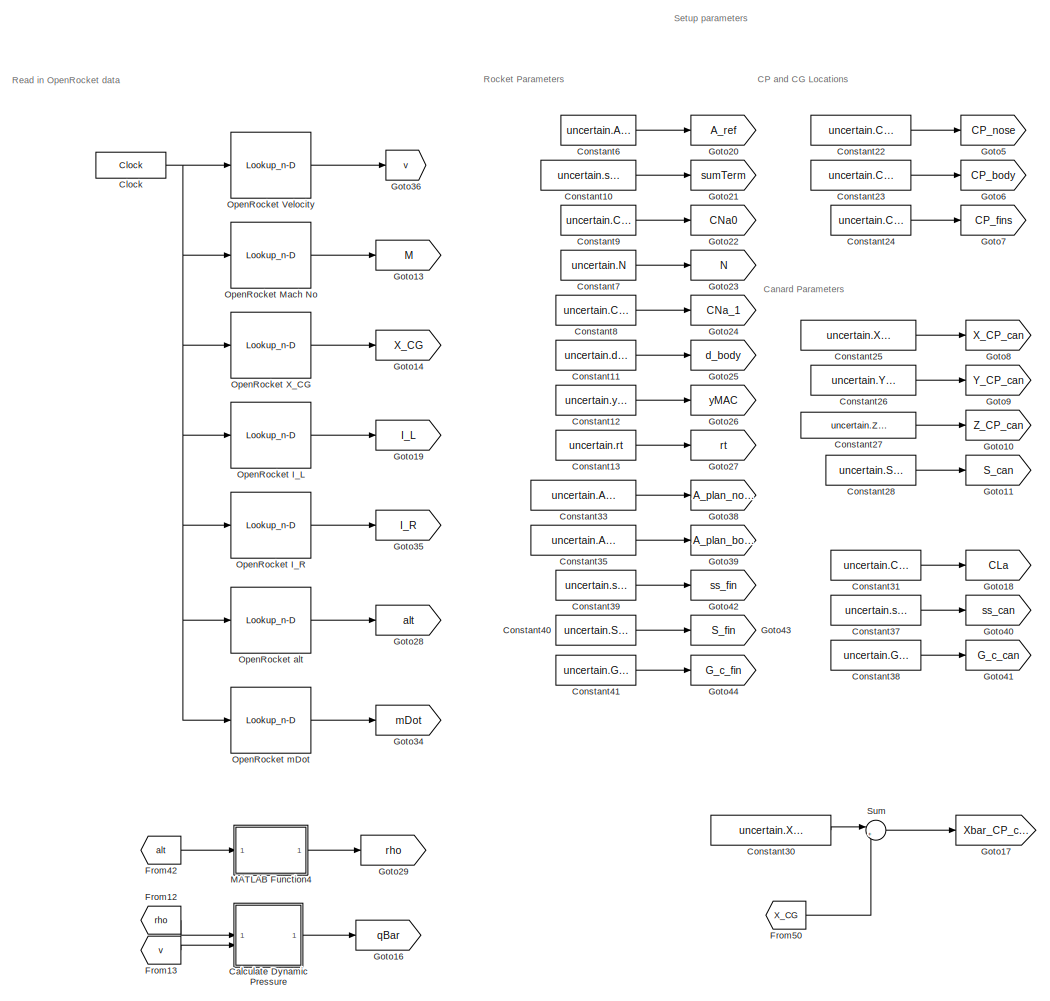
[diagram: root canvas - part 1/5, left side, full height]
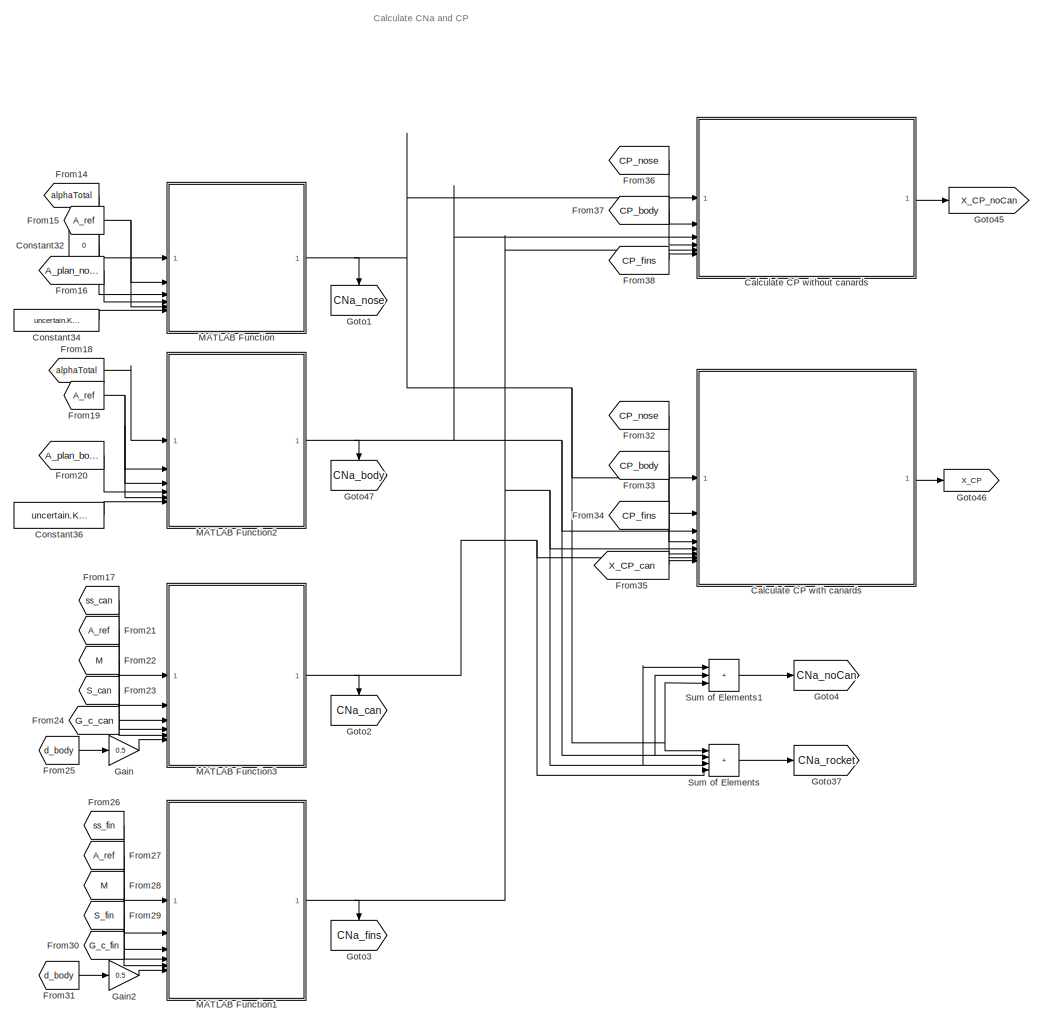
[diagram: root canvas - part 2/5, center side, full height]
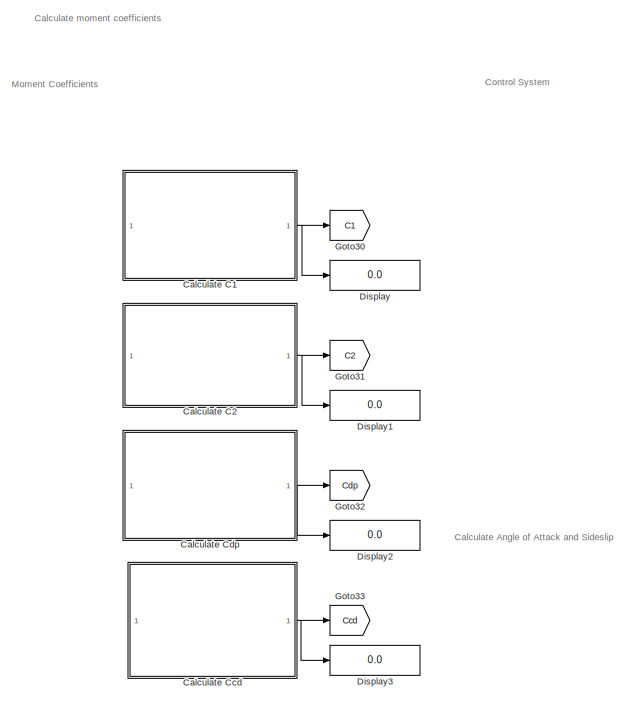
[diagram: root canvas - part 3/5, central region]
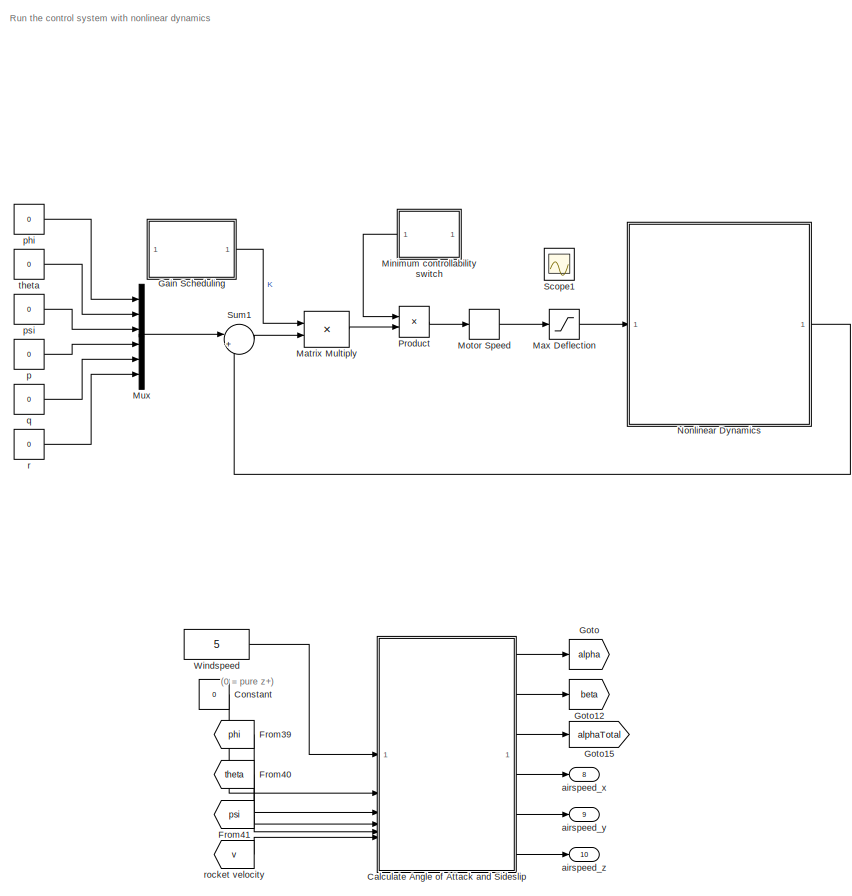
[diagram: root canvas - part 4/5, right side, full height]
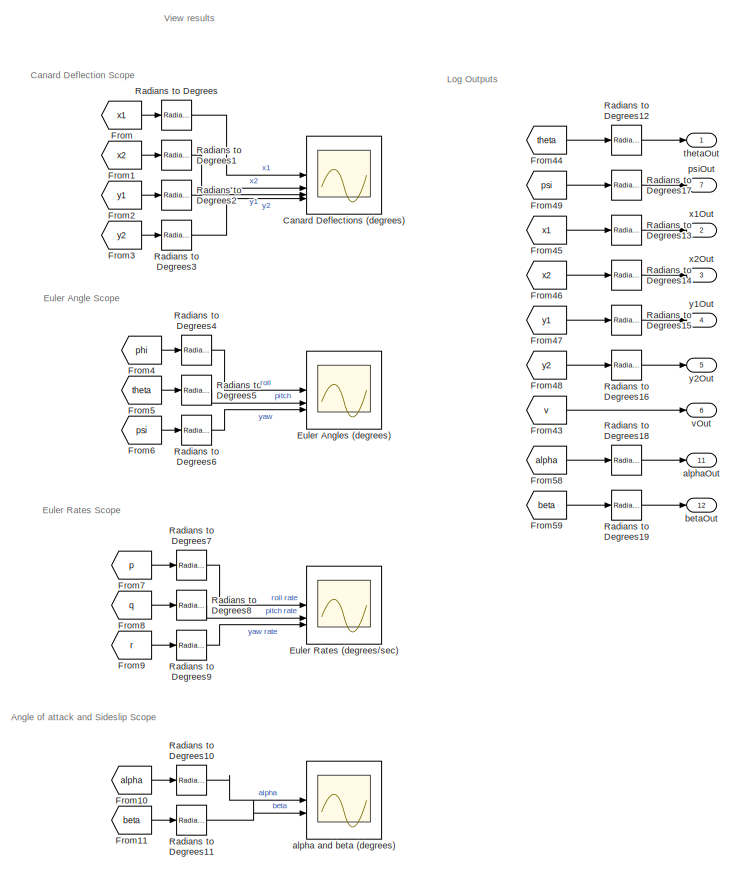
[diagram: root canvas - part 5/5, right side, full height]
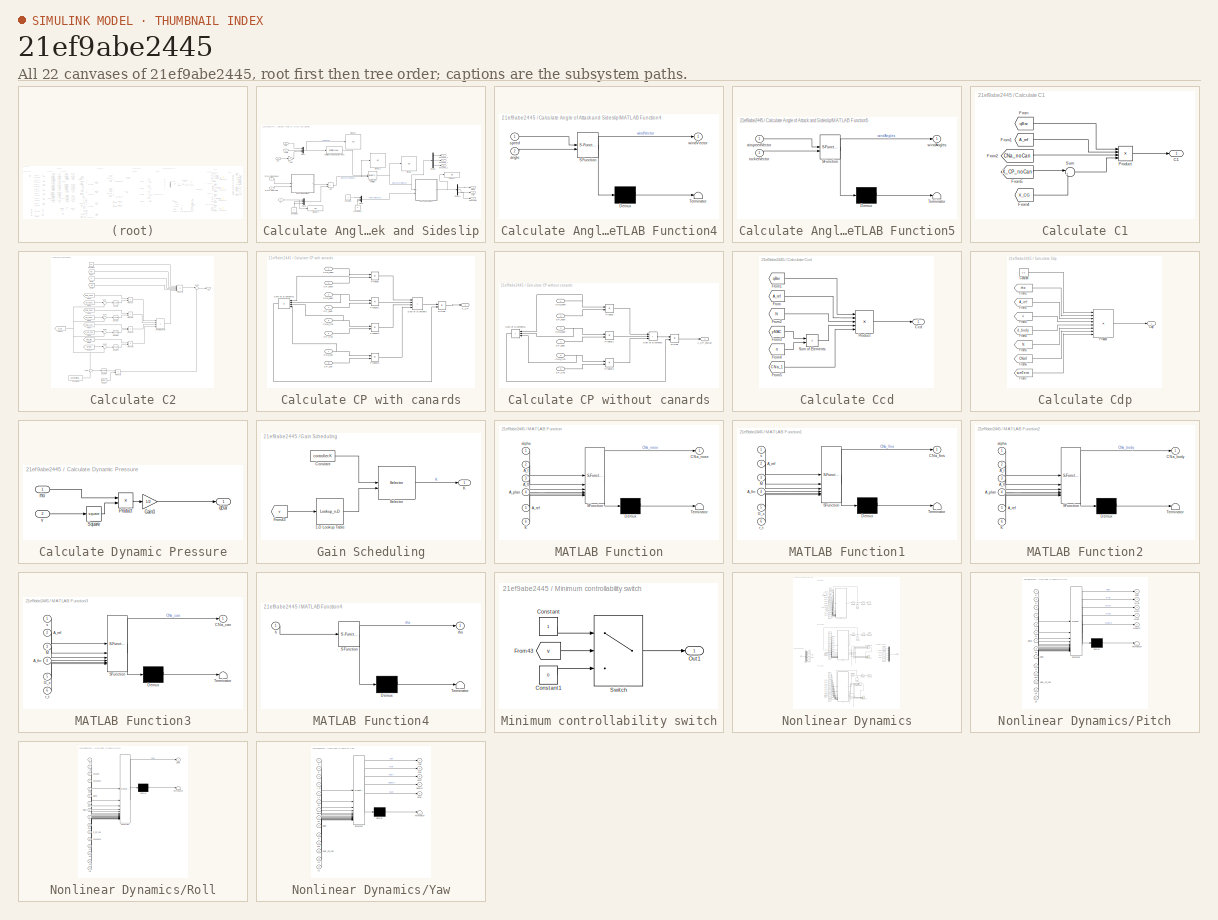
[diagram: thumbnail index - all 22 canvases of the model, root first then tree order]
MODEL slx_21ef9abe2445
KIND model
CONFIG AbsTol = auto
CONFIG EnableMultiTasking = off
CONFIG FixedStep = 0.01
CONFIG MaxStep = auto
CONFIG MinStep = auto
CONFIG RelTol = 1e-3
CONFIG SampleTimeConstraint = Unconstrained
CONFIG SolverName = FixedStepAuto
CONFIG StartTime = 0.0
CONFIG StopTime = 14.9
BLOCK [SubSystem] Calculate Angle of Attack and Sideslip
BLOCK [Sum] Calculate Angle of Attack and Sideslip/Add
  IconShape = rectangular
BLOCK [Constant] Calculate Angle of Attack and Sideslip/Constant
BLOCK [Constant] Calculate Angle of Attack and Sideslip/Constant1
  NameLocation = right
  Value = 0
BLOCK [Constant] Calculate Angle of Attack and Sideslip/Constant16
  NameLocation = right
  Value = 0
BLOCK [Inport] Calculate Angle of Attack and Sideslip/Cross-wind Angle
  Port = 2
BLOCK [Inport] Calculate Angle of Attack and Sideslip/Cross-wind Speed
BLOCK [Demux] Calculate Angle of Attack and Sideslip/Demux
  Outputs = 3
BLOCK [Demux] Calculate Angle of Attack and Sideslip/Demux1
  Outputs = 3
BLOCK [Display] Calculate Angle of Attack and Sideslip/Display
  Decimation = 1
BLOCK [Display] Calculate Angle of Attack and Sideslip/Display1
  Decimation = 1
BLOCK [Display] Calculate Angle of Attack and Sideslip/Display2
  Decimation = 1
BLOCK [Display] Calculate Angle of Attack and Sideslip/Display3
  Decimation = 1
BLOCK [Display] Calculate Angle of Attack and Sideslip/Display4
  Decimation = 1
BLOCK [Gain] Calculate Angle of Attack and Sideslip/Gain
  Gain = -1
BLOCK [SubSystem] Calculate Angle of Attack and Sideslip/MATLAB Function4
  ErrorFcn = Stateflow.Translate.translate
  PermitHierarchicalResolution = ExplicitOnly
  SFBlockType = MATLAB Function
  TreatAsAtomicUnit = on
BLOCK [Demux] Calculate Angle of Attack and Sideslip/MATLAB Function4/ Demux 
  Outputs = 1
BLOCK [S-Function] Calculate Angle of Attack and Sideslip/MATLAB Function4/ SFunction 
  EnableBusSupport = on
  FunctionName = sf_sfun
  PortCounts = [2 2]
  SFcnIsStateOwnerBlock = off
  SFunctionDeploymentMode = off
  Tag = Stateflow S-Function 8
BLOCK [Terminator] Calculate Angle of Attack and Sideslip/MATLAB Function4/ Terminator 
BLOCK [Inport] Calculate Angle of Attack and Sideslip/MATLAB Function4/angle
  Port = 2
BLOCK [Inport] Calculate Angle of Attack and Sideslip/MATLAB Function4/speed
BLOCK [Outport] Calculate Angle of Attack and Sideslip/MATLAB Function4/windVector
BLOCK [SubSystem] Calculate Angle of Attack and Sideslip/MATLAB Function5
  ErrorFcn = Stateflow.Translate.translate
  PermitHierarchicalResolution = ExplicitOnly
  SFBlockType = MATLAB Function
  TreatAsAtomicUnit = on
BLOCK [Demux] Calculate Angle of Attack and Sideslip/MATLAB Function5/ Demux 
  Outputs = 1
BLOCK [S-Function] Calculate Angle of Attack and Sideslip/MATLAB Function5/ SFunction 
  EnableBusSupport = on
  FunctionName = sf_sfun
  PortCounts = [2 2]
  SFcnIsStateOwnerBlock = off
  SFunctionDeploymentMode = off
  Tag = Stateflow S-Function 9
BLOCK [Terminator] Calculate Angle of Attack and Sideslip/MATLAB Function5/ Terminator 
BLOCK [Inport] Calculate Angle of Attack and Sideslip/MATLAB Function5/airspeedVector
BLOCK [Inport] Calculate Angle of Attack and Sideslip/MATLAB Function5/rocketVector
  Port = 2
BLOCK [Outport] Calculate Angle of Attack and Sideslip/MATLAB Function5/windAngles
BLOCK [Mux] Calculate Angle of Attack and Sideslip/Mux1
  DisplayOption = bar
  Inputs = 3
BLOCK [Mux] Calculate Angle of Attack and Sideslip/Mux2
  DisplayOption = bar
  Inputs = 3
BLOCK [Mux] Calculate Angle of Attack and Sideslip/Mux3
  DisplayOption = bar
  Inputs = 3
BLOCK [Inport] Calculate Angle of Attack and Sideslip/Phi
  Port = 3
BLOCK [Inport] Calculate Angle of Attack and Sideslip/Psi
  Port = 5
BLOCK [Reference] Calculate Angle of Attack and Sideslip/Quaternion Rotation  REF=aerolibutil/Quaternion
Rotation
  SourceBlock = aerolibutil/Quaternion\nRotation
  SourceType = Quaternion Rotation
BLOCK [Reference] Calculate Angle of Attack and Sideslip/Rotation Angles to Quaternions  REF=sharedtransform/Rotation Angles to Quaternions
  AttributesFormatString = Rotation Order: %<rotationOrder>
  SourceBlock = sharedtransform/Rotation Angles to Quaternions
  SourceType = Ang2Quat
BLOCK [Inport] Calculate Angle of Attack and Sideslip/Theta
  Port = 4
BLOCK [Outport] Calculate Angle of Attack and Sideslip/airspeed_x
  Port = 4
BLOCK [Outport] Calculate Angle of Attack and Sideslip/airspeed_y
  Port = 5
BLOCK [Outport] Calculate Angle of Attack and Sideslip/airspeed_z
  Port = 6
BLOCK [Outport] Calculate Angle of Attack and Sideslip/alpha
BLOCK [Outport] Calculate Angle of Attack and Sideslip/alphaTotal
  Port = 3
BLOCK [Outport] Calculate Angle of Attack and Sideslip/beta
  Port = 2
BLOCK [Inport] Calculate Angle of Attack and Sideslip/v
  Port = 6
BLOCK [SubSystem] Calculate C1
BLOCK [Outport] Calculate C1/C1
BLOCK [From] Calculate C1/From
  GotoTag = qBar
  TagVisibility = global
BLOCK [From] Calculate C1/From1
  GotoTag = A_ref
  TagVisibility = global
BLOCK [From] Calculate C1/From2
  GotoTag = CNa_noCan
  TagVisibility = global
BLOCK [From] Calculate C1/From4
  GotoTag = X_CG
  TagVisibility = global
BLOCK [From] Calculate C1/From5
  GotoTag = X_CP_noCan
  TagVisibility = global
BLOCK [Product] Calculate C1/Product
  Inputs = 4
BLOCK [Sum] Calculate C1/Sum
  Inputs = |+-
BLOCK [SubSystem] Calculate C2
BLOCK [Outport] Calculate C2/C2
BLOCK [Constant] Calculate C2/Constant
  Value = 0.5
BLOCK [Constant] Calculate C2/Constant1
  Value = uncertain.X_T
BLOCK [From] Calculate C2/From
  GotoTag = rho
  TagVisibility = global
BLOCK [From] Calculate C2/From1
  GotoTag = v
  TagVisibility = global
BLOCK [From] Calculate C2/From10
  GotoTag = CP_fins
  TagVisibility = global
BLOCK [From] Calculate C2/From11
  GotoTag = X_CG
  TagVisibility = global
BLOCK [From] Calculate C2/From12
  GotoTag = mDot
  TagVisibility = global
BLOCK [From] Calculate C2/From2
  GotoTag = A_ref
  TagVisibility = global
BLOCK [From] Calculate C2/From3
  GotoTag = CNa_nose
  TagVisibility = global
BLOCK [From] Calculate C2/From4
  GotoTag = CP_nose
  TagVisibility = global
BLOCK [From] Calculate C2/From5
  GotoTag = CNa_body
  TagVisibility = global
BLOCK [From] Calculate C2/From6
  GotoTag = CP_body
  TagVisibility = global
BLOCK [From] Calculate C2/From7
  GotoTag = CNa_can
  TagVisibility = global
BLOCK [From] Calculate C2/From8
  GotoTag = X_CP_can
  TagVisibility = global
BLOCK [From] Calculate C2/From9
  GotoTag = CNa_fins
  TagVisibility = global
BLOCK [Product] Calculate C2/Product
BLOCK [Product] Calculate C2/Product1
BLOCK [Product] Calculate C2/Product2
BLOCK [Product] Calculate C2/Product3
BLOCK [Product] Calculate C2/Product4
  Inputs = 5
BLOCK [Product] Calculate C2/Product5
BLOCK [Math] Calculate C2/Square
  Operator = square
BLOCK [Math] Calculate C2/Square1
  Operator = square
BLOCK [Math] Calculate C2/Square2
  Operator = square
BLOCK [Math] Calculate C2/Square3
  Operator = square
BLOCK [Math] Calculate C2/Square4
  Operator = square
BLOCK [Sum] Calculate C2/Sum
  Inputs = |+-
BLOCK [Sum] Calculate C2/Sum of Elements
  IconShape = rectangular
  Inputs = ++++
BLOCK [Sum] Calculate C2/Sum1
  Inputs = |+-
BLOCK [Sum] Calculate C2/Sum2
  Inputs = |+-
BLOCK [Sum] Calculate C2/Sum3
  Inputs = |+-
BLOCK [Sum] Calculate C2/Sum4
  Inputs = -+
BLOCK [Sum] Calculate C2/Sum5
  Inputs = |++
BLOCK [SubSystem] Calculate CP with canards
BLOCK [Inport] Calculate CP with canards/CNa_body
  Port = 3
BLOCK [Inport] Calculate CP with canards/CNa_can
  Port = 7
BLOCK [Inport] Calculate CP with canards/CNa_fins
  Port = 5
BLOCK [Inport] Calculate CP with canards/CNa_nose
BLOCK [Inport] Calculate CP with canards/CP_body
  Port = 4
BLOCK [Inport] Calculate CP with canards/CP_can
  Port = 8
BLOCK [Inport] Calculate CP with canards/CP_fins
  Port = 6
BLOCK [Inport] Calculate CP with canards/CP_nose
  Port = 2
BLOCK [Product] Calculate CP with canards/Divide
  Inputs = */
BLOCK [Product] Calculate CP with canards/Product
BLOCK [Product] Calculate CP with canards/Product1
BLOCK [Product] Calculate CP with canards/Product2
BLOCK [Product] Calculate CP with canards/Product3
BLOCK [Sum] Calculate CP with canards/Sum of Elements
  IconShape = rectangular
  Inputs = ++++
BLOCK [Sum] Calculate CP with canards/Sum of Elements1
  IconShape = rectangular
  Inputs = ++++
  NameLocation = top
BLOCK [Outport] Calculate CP with canards/X_CP
BLOCK [SubSystem] Calculate CP without canards
BLOCK [Inport] Calculate CP without canards/CNa_body
  Port = 3
BLOCK [Inport] Calculate CP without canards/CNa_fins
  Port = 5
BLOCK [Inport] Calculate CP without canards/CNa_nose
BLOCK [Inport] Calculate CP without canards/CP_body
  Port = 4
BLOCK [Inport] Calculate CP without canards/CP_fins
  Port = 6
BLOCK [Inport] Calculate CP without canards/CP_nose
  Port = 2
BLOCK [Product] Calculate CP without canards/Divide
  Inputs = */
BLOCK [Product] Calculate CP without canards/Product
BLOCK [Product] Calculate CP without canards/Product1
BLOCK [Product] Calculate CP without canards/Product2
BLOCK [Sum] Calculate CP without canards/Sum of Elements
  IconShape = rectangular
  Inputs = +++
BLOCK [Sum] Calculate CP without canards/Sum of Elements1
  IconShape = rectangular
  Inputs = +++
  NameLocation = top
BLOCK [Outport] Calculate CP without canards/X_CP_noCan
BLOCK [SubSystem] Calculate Ccd
BLOCK [Outport] Calculate Ccd/Ccd
BLOCK [From] Calculate Ccd/From
  GotoTag = A_ref
  TagVisibility = global
BLOCK [From] Calculate Ccd/From1
  GotoTag = qBar
  TagVisibility = global
BLOCK [From] Calculate Ccd/From2
  GotoTag = N
  TagVisibility = global
BLOCK [From] Calculate Ccd/From3
  GotoTag = yMAC
  TagVisibility = global
BLOCK [From] Calculate Ccd/From4
  GotoTag = rt
  TagVisibility = global
BLOCK [From] Calculate Ccd/From5
  GotoTag = CNa_1
  TagVisibility = global
BLOCK [Product] Calculate Ccd/Product
  Inputs = 5
BLOCK [Sum] Calculate Ccd/Sum of Elements
  IconShape = rectangular
BLOCK [SubSystem] Calculate Cdp
BLOCK [Outport] Calculate Cdp/Cdp
BLOCK [Constant] Calculate Cdp/Constant
  Value = 0.5
BLOCK [From] Calculate Cdp/From1
  GotoTag = rho
  TagVisibility = global
BLOCK [From] Calculate Cdp/From2
  GotoTag = A_ref
  TagVisibility = global
BLOCK [From] Calculate Cdp/From3
  GotoTag = v
  TagVisibility = global
BLOCK [From] Calculate Cdp/From4
  GotoTag = d_body
  TagVisibility = global
BLOCK [From] Calculate Cdp/From5
  GotoTag = N
  TagVisibility = global
BLOCK [From] Calculate Cdp/From6
  GotoTag = CNa0
  TagVisibility = global
BLOCK [From] Calculate Cdp/From7
  GotoTag = sumTerm
  TagVisibility = global
BLOCK [Product] Calculate Cdp/Product
  Inputs = 8
BLOCK [SubSystem] Calculate Dynamic Pressure
BLOCK [Gain] Calculate Dynamic Pressure/Gain3
  Gain = 1/2
BLOCK [Product] Calculate Dynamic Pressure/Product
BLOCK [Math] Calculate Dynamic Pressure/Square
  Operator = square
BLOCK [Outport] Calculate Dynamic Pressure/qBar
BLOCK [Inport] Calculate Dynamic Pressure/rho
BLOCK [Inport] Calculate Dynamic Pressure/v
  Port = 2
BLOCK [Scope] Canard Deflections (degrees)
  Floating = off
  NumInputPorts = 4
  ScopeSpecificationString = Simulink.scopes.TimeScopeBlockCfg('CurrentConfiguration', extmgr.ConfigurationSet(extmgr.Configuration('Core','General UI',true),extmgr.Configuration('Core','Source UI',true),extmgr.Configuration('Sources','WiredSimulink',true),extmgr.Configuration('Visuals','Time Domain',true,'SerializedDisplays',{struct('MinYLimReal','-7.0565','MaxYLimReal','7.0565','YLabelReal','','MinYLimMag','0.00000','MaxYLi...<+2286ch>
BLOCK [Clock] Clock
  DisplayTime = on
BLOCK [Constant] Constant
  Value = 0
BLOCK [Constant] Constant10
  Value = uncertain.sumTerm
BLOCK [Constant] Constant11
  Value = uncertain.d_body
BLOCK [Constant] Constant12
  Value = uncertain.yMAC
BLOCK [Constant] Constant13
  Value = uncertain.rt
BLOCK [Constant] Constant22
  Value = uncertain.CP_nose
BLOCK [Constant] Constant23
  Value = uncertain.CP_body
BLOCK [Constant] Constant24
  Value = uncertain.CP_fins
BLOCK [Constant] Constant25
  Value = uncertain.X_CP_can
BLOCK [Constant] Constant26
  Value = uncertain.Y_CP_can
BLOCK [Constant] Constant27
  Value = uncertain.Z_CP_can
BLOCK [Constant] Constant28
  Value = uncertain.S_can
BLOCK [Constant] Constant30
  Value = uncertain.X_CP_can
BLOCK [Constant] Constant31
  Value = uncertain.CLa
BLOCK [Constant] Constant32
  Value = 0
BLOCK [Constant] Constant33
  Value = uncertain.A_plan_nose
BLOCK [Constant] Constant34
  Value = uncertain.K_const
BLOCK [Constant] Constant35
  Value = uncertain.A_plan_body
BLOCK [Constant] Constant36
  Value = uncertain.K_const
BLOCK [Constant] Constant37
  Value = uncertain.ss_can
BLOCK [Constant] Constant38
  Value = uncertain.G_c_can
BLOCK [Constant] Constant39
  Value = uncertain.ss_fin
BLOCK [Constant] Constant40
  Value = uncertain.S_fin
BLOCK [Constant] Constant41
  Value = uncertain.G_c_fin
BLOCK [Constant] Constant6
  Value = uncertain.A_ref
BLOCK [Constant] Constant7
  Value = uncertain.N
BLOCK [Constant] Constant8
  Value = uncertain.CNa_1
BLOCK [Constant] Constant9
  Value = uncertain.CNa0
BLOCK [Display] Display
  Decimation = 1
BLOCK [Display] Display1
  Decimation = 1
BLOCK [Display] Display2
  Decimation = 1
BLOCK [Display] Display3
  Decimation = 1
BLOCK [Scope] Euler Angles (degrees)
  Floating = off
  NumInputPorts = 3
  ScopeSpecificationString = Simulink.scopes.TimeScopeBlockCfg('CurrentConfiguration', extmgr.ConfigurationSet(extmgr.Configuration('Core','General UI',true),extmgr.Configuration('Core','Source UI',true),extmgr.Configuration('Sources','WiredSimulink',true,'DataLoggingVariableName','ScopeData1'),extmgr.Configuration('Visuals','Time Domain',true,'SerializedDisplays',{struct('MinYLimReal','-22.77855','MaxYLimReal','2.5507','YLab...<+1864ch>
BLOCK [Scope] Euler Rates (degrees//sec)
  Floating = off
  NumInputPorts = 3
  ScopeSpecificationString = Simulink.scopes.TimeScopeBlockCfg('CurrentConfiguration', extmgr.ConfigurationSet(extmgr.Configuration('Core','General UI',true),extmgr.Configuration('Core','Source UI',true),extmgr.Configuration('Sources','WiredSimulink',true,'DataLoggingVariableName','ScopeData2'),extmgr.Configuration('Visuals','Time Domain',true,'SerializedDisplays',{struct('MinYLimReal','-126.56164','MaxYLimReal','35.20185','Y...<+1901ch>
BLOCK [From] From
  GotoTag = x1
  TagVisibility = global
BLOCK [From] From1
  GotoTag = x2
  TagVisibility = global
BLOCK [From] From10
  GotoTag = alpha
  TagVisibility = global
BLOCK [From] From11
  GotoTag = beta
  TagVisibility = global
BLOCK [From] From12
  GotoTag = rho
  TagVisibility = global
BLOCK [From] From13
  GotoTag = v
  TagVisibility = global
BLOCK [From] From14
  GotoTag = alphaTotal
  TagVisibility = global
BLOCK [From] From15
  GotoTag = A_ref
  TagVisibility = global
BLOCK [From] From16
  GotoTag = A_plan_nose
  TagVisibility = global
BLOCK [From] From17
  GotoTag = ss_can
  TagVisibility = global
BLOCK [From] From18
  GotoTag = alphaTotal
  TagVisibility = global
BLOCK [From] From19
  GotoTag = A_ref
  TagVisibility = global
BLOCK [From] From2
  GotoTag = y1
  TagVisibility = global
BLOCK [From] From20
  GotoTag = A_plan_body
  TagVisibility = global
BLOCK [From] From21
  GotoTag = A_ref
  TagVisibility = global
BLOCK [From] From22
  GotoTag = M
  TagVisibility = global
BLOCK [From] From23
  GotoTag = S_can
  TagVisibility = global
BLOCK [From] From24
  GotoTag = G_c_can
  TagVisibility = global
BLOCK [From] From25
  GotoTag = d_body
  TagVisibility = global
BLOCK [From] From26
  GotoTag = ss_fin
  TagVisibility = global
BLOCK [From] From27
  GotoTag = A_ref
  TagVisibility = global
BLOCK [From] From28
  GotoTag = M
  TagVisibility = global
BLOCK [From] From29
  GotoTag = S_fin
  TagVisibility = global
BLOCK [From] From3
  GotoTag = y2
  TagVisibility = global
BLOCK [From] From30
  GotoTag = G_c_fin
  TagVisibility = global
BLOCK [From] From31
  GotoTag = d_body
  TagVisibility = global
BLOCK [From] From32
  GotoTag = CP_nose
  TagVisibility = global
BLOCK [From] From33
  GotoTag = CP_body
  TagVisibility = global
BLOCK [From] From34
  GotoTag = CP_fins
  TagVisibility = global
BLOCK [From] From35
  GotoTag = X_CP_can
  TagVisibility = global
BLOCK [From] From36
  GotoTag = CP_nose
  TagVisibility = global
BLOCK [From] From37
  GotoTag = CP_body
  TagVisibility = global
BLOCK [From] From38
  GotoTag = CP_fins
  TagVisibility = global
BLOCK [From] From39
  GotoTag = phi
  TagVisibility = global
BLOCK [From] From4
  GotoTag = phi
  TagVisibility = global
BLOCK [From] From40
  GotoTag = theta
  TagVisibility = global
BLOCK [From] From41
  GotoTag = psi
  TagVisibility = global
BLOCK [From] From42
  GotoTag = alt
  TagVisibility = global
BLOCK [From] From43
  GotoTag = v
  TagVisibility = global
BLOCK [From] From44
  GotoTag = theta
  TagVisibility = global
BLOCK [From] From45
  GotoTag = x1
  TagVisibility = global
BLOCK [From] From46
  GotoTag = x2
  TagVisibility = global
BLOCK [From] From47
  GotoTag = y1
  TagVisibility = global
BLOCK [From] From48
  GotoTag = y2
  TagVisibility = global
BLOCK [From] From49
  GotoTag = psi
  TagVisibility = global
BLOCK [From] From5
  GotoTag = theta
  TagVisibility = global
BLOCK [From] From50
  GotoTag = X_CG
  TagVisibility = global
BLOCK [From] From58
  GotoTag = alpha
  TagVisibility = global
BLOCK [From] From59
  GotoTag = beta
  TagVisibility = global
BLOCK [From] From6
  GotoTag = psi
  TagVisibility = global
BLOCK [From] From7
  GotoTag = p
  TagVisibility = global
BLOCK [From] From8
  GotoTag = q
  TagVisibility = global
BLOCK [From] From9
  GotoTag = r
  TagVisibility = global
BLOCK [Gain] Gain
  Gain = 0.5
BLOCK [SubSystem] Gain Scheduling
BLOCK [Lookup_n-D] Gain Scheduling/1-D Lookup Table
  BreakpointsForDimension1 = controller.velocities
  InputPortMap = u0
  InternalRulePriority = Speed
  InterpMethod = Nearest
  NumberOfTableDimensions = 1
  OutDataTypeStr = int8
  RndMeth = Simplest
  Table = 1:length(controller.velocities)
BLOCK [Constant] Gain Scheduling/Constant
  Value = controller.K
BLOCK [From] Gain Scheduling/From43
  GotoTag = v
  TagVisibility = global
BLOCK [Outport] Gain Scheduling/K
BLOCK [Selector] Gain Scheduling/Selector
  IndexOptions = Select all,Select all,Index vector (port)
  Indices = [1 3],1,1
  InputPortWidth = 3
  NumberOfDimensions = 3
  OutputSizes = 1,1,1
BLOCK [Gain] Gain2
  Gain = 0.5
BLOCK [Goto] Goto
  GotoTag = alpha
  TagVisibility = global
BLOCK [Goto] Goto1
  GotoTag = CNa_nose
  NameLocation = left
  TagVisibility = global
BLOCK [Goto] Goto10
  GotoTag = Z_CP_can
  TagVisibility = global
BLOCK [Goto] Goto11
  GotoTag = S_can
  TagVisibility = global
BLOCK [Goto] Goto12
  GotoTag = beta
  TagVisibility = global
BLOCK [Goto] Goto13
  GotoTag = M
  TagVisibility = global
BLOCK [Goto] Goto14
  GotoTag = X_CG
  TagVisibility = global
BLOCK [Goto] Goto15
  GotoTag = alphaTotal
  TagVisibility = global
BLOCK [Goto] Goto16
  GotoTag = qBar
  TagVisibility = global
BLOCK [Goto] Goto17
  GotoTag = Xbar_CP_can
  NameLocation = left
  TagVisibility = global
BLOCK [Goto] Goto18
  GotoTag = CLa
  TagVisibility = global
BLOCK [Goto] Goto19
  GotoTag = I_L
  TagVisibility = global
BLOCK [Goto] Goto2
  GotoTag = CNa_can
  NameLocation = left
  TagVisibility = global
BLOCK [Goto] Goto20
  GotoTag = A_ref
  TagVisibility = global
BLOCK [Goto] Goto21
  GotoTag = sumTerm
  TagVisibility = global
BLOCK [Goto] Goto22
  GotoTag = CNa0
  TagVisibility = global
BLOCK [Goto] Goto23
  GotoTag = N
  TagVisibility = global
BLOCK [Goto] Goto24
  GotoTag = CNa_1
  TagVisibility = global
BLOCK [Goto] Goto25
  GotoTag = d_body
  TagVisibility = global
BLOCK [Goto] Goto26
  GotoTag = yMAC
  TagVisibility = global
BLOCK [Goto] Goto27
  GotoTag = rt
  TagVisibility = global
BLOCK [Goto] Goto28
  GotoTag = alt
  TagVisibility = global
BLOCK [Goto] Goto29
  GotoTag = rho
  TagVisibility = global
BLOCK [Goto] Goto3
  GotoTag = CNa_fins
  NameLocation = left
  TagVisibility = global
BLOCK [Goto] Goto30
  GotoTag = C1
  TagVisibility = global
BLOCK [Goto] Goto31
  GotoTag = C2
  TagVisibility = global
BLOCK [Goto] Goto32
  GotoTag = Cdp
  TagVisibility = global
BLOCK [Goto] Goto33
  GotoTag = Ccd
  TagVisibility = global
BLOCK [Goto] Goto34
  GotoTag = mDot
  TagVisibility = global
BLOCK [Goto] Goto35
  GotoTag = I_R
  TagVisibility = global
BLOCK [Goto] Goto36
  GotoTag = v
  TagVisibility = global
BLOCK [Goto] Goto37
  GotoTag = CNa_rocket
  TagVisibility = global
BLOCK [Goto] Goto38
  GotoTag = A_plan_nose
  TagVisibility = global
BLOCK [Goto] Goto39
  GotoTag = A_plan_body
  TagVisibility = global
BLOCK [Goto] Goto4
  GotoTag = CNa_noCan
  TagVisibility = global
BLOCK [Goto] Goto40
  GotoTag = ss_can
  TagVisibility = global
BLOCK [Goto] Goto41
  GotoTag = G_c_can
  TagVisibility = global
BLOCK [Goto] Goto42
  GotoTag = ss_fin
  TagVisibility = global
BLOCK [Goto] Goto43
  GotoTag = S_fin
  TagVisibility = global
BLOCK [Goto] Goto44
  GotoTag = G_c_fin
  TagVisibility = global
BLOCK [Goto] Goto45
  GotoTag = X_CP_noCan
  TagVisibility = global
BLOCK [Goto] Goto46
  GotoTag = X_CP
  TagVisibility = global
BLOCK [Goto] Goto47
  GotoTag = CNa_body
  NameLocation = left
  TagVisibility = global
BLOCK [Goto] Goto5
  GotoTag = CP_nose
  TagVisibility = global
BLOCK [Goto] Goto6
  GotoTag = CP_body
  TagVisibility = global
BLOCK [Goto] Goto7
  GotoTag = CP_fins
  TagVisibility = global
BLOCK [Goto] Goto8
  GotoTag = X_CP_can
  TagVisibility = global
BLOCK [Goto] Goto9
  GotoTag = Y_CP_can
  TagVisibility = global
BLOCK [SubSystem] MATLAB Function
  ErrorFcn = Stateflow.Translate.translate
  PermitHierarchicalResolution = ExplicitOnly
  SFBlockType = MATLAB Function
  TreatAsAtomicUnit = on
BLOCK [Demux] MATLAB Function/ Demux 
  Outputs = 1
BLOCK [S-Function] MATLAB Function/ SFunction 
  EnableBusSupport = on
  FunctionName = sf_sfun
  PortCounts = [6 2]
  SFcnIsStateOwnerBlock = off
  SFunctionDeploymentMode = off
  Tag = Stateflow S-Function 4
BLOCK [Terminator] MATLAB Function/ Terminator 
BLOCK [Inport] MATLAB Function/A_0
  Port = 3
BLOCK [Inport] MATLAB Function/A_l
  Port = 2
BLOCK [Inport] MATLAB Function/A_plan
  Port = 4
BLOCK [Inport] MATLAB Function/A_ref
  Port = 5
BLOCK [Outport] MATLAB Function/CNa_nose
BLOCK [Inport] MATLAB Function/K
  Port = 6
BLOCK [Inport] MATLAB Function/alpha
BLOCK [SubSystem] MATLAB Function1
  ErrorFcn = Stateflow.Translate.translate
  PermitHierarchicalResolution = ExplicitOnly
  SFBlockType = MATLAB Function
  TreatAsAtomicUnit = on
BLOCK [Demux] MATLAB Function1/ Demux 
  Outputs = 1
BLOCK [S-Function] MATLAB Function1/ SFunction 
  EnableBusSupport = on
  FunctionName = sf_sfun
  PortCounts = [6 2]
  SFcnIsStateOwnerBlock = off
  SFunctionDeploymentMode = off
  Tag = Stateflow S-Function 5
BLOCK [Terminator] MATLAB Function1/ Terminator 
BLOCK [Inport] MATLAB Function1/A_fin
  Port = 4
BLOCK [Inport] MATLAB Function1/A_ref
  Port = 2
BLOCK [Outport] MATLAB Function1/CNa_fins
BLOCK [Inport] MATLAB Function1/G_c
  Port = 5
BLOCK [Inport] MATLAB Function1/M
  Port = 3
BLOCK [Inport] MATLAB Function1/r_t
  Port = 6
BLOCK [Inport] MATLAB Function1/s
BLOCK [SubSystem] MATLAB Function2
  ErrorFcn = Stateflow.Translate.translate
  PermitHierarchicalResolution = ExplicitOnly
  SFBlockType = MATLAB Function
  TreatAsAtomicUnit = on
BLOCK [Demux] MATLAB Function2/ Demux 
  Outputs = 1
BLOCK [S-Function] MATLAB Function2/ SFunction 
  EnableBusSupport = on
  FunctionName = sf_sfun
  PortCounts = [6 2]
  SFcnIsStateOwnerBlock = off
  SFunctionDeploymentMode = off
  Tag = Stateflow S-Function 6
BLOCK [Terminator] MATLAB Function2/ Terminator 
BLOCK [Inport] MATLAB Function2/A_0
  Port = 3
BLOCK [Inport] MATLAB Function2/A_l
  Port = 2
BLOCK [Inport] MATLAB Function2/A_plan
  Port = 4
BLOCK [Inport] MATLAB Function2/A_ref
  Port = 5
BLOCK [Outport] MATLAB Function2/CNa_body
BLOCK [Inport] MATLAB Function2/K
  Port = 6
BLOCK [Inport] MATLAB Function2/alpha
BLOCK [SubSystem] MATLAB Function3
  ErrorFcn = Stateflow.Translate.translate
  PermitHierarchicalResolution = ExplicitOnly
  SFBlockType = MATLAB Function
  TreatAsAtomicUnit = on
BLOCK [Demux] MATLAB Function3/ Demux 
  Outputs = 1
BLOCK [S-Function] MATLAB Function3/ SFunction 
  EnableBusSupport = on
  FunctionName = sf_sfun
  PortCounts = [6 2]
  SFcnIsStateOwnerBlock = off
  SFunctionDeploymentMode = off
  Tag = Stateflow S-Function 7
BLOCK [Terminator] MATLAB Function3/ Terminator 
BLOCK [Inport] MATLAB Function3/A_fin
  Port = 4
BLOCK [Inport] MATLAB Function3/A_ref
  Port = 2
BLOCK [Outport] MATLAB Function3/CNa_can
BLOCK [Inport] MATLAB Function3/G_c
  Port = 5
BLOCK [Inport] MATLAB Function3/M
  Port = 3
BLOCK [Inport] MATLAB Function3/r_t
  Port = 6
BLOCK [Inport] MATLAB Function3/s
BLOCK [SubSystem] MATLAB Function4
  ErrorFcn = Stateflow.Translate.translate
  PermitHierarchicalResolution = ExplicitOnly
  SFBlockType = MATLAB Function
  TreatAsAtomicUnit = on
BLOCK [Demux] MATLAB Function4/ Demux 
  Outputs = 1
BLOCK [S-Function] MATLAB Function4/ SFunction 
  EnableBusSupport = on
  FunctionName = sf_sfun
  PortCounts = [1 2]
  SFcnIsStateOwnerBlock = off
  SFunctionDeploymentMode = off
  Tag = Stateflow S-Function 10
BLOCK [Terminator] MATLAB Function4/ Terminator 
BLOCK [Inport] MATLAB Function4/h
BLOCK [Outport] MATLAB Function4/rho
BLOCK [Product] Matrix Multiply
  Multiplication = Matrix(*)
BLOCK [Saturate] Max Deflection
  LowerLimit = -deg2rad(13)
  UpperLimit = deg2rad(13)
BLOCK [SubSystem] Minimum controllability switch
  NameLocation = top
BLOCK [Constant] Minimum controllability switch/Constant
BLOCK [Constant] Minimum controllability switch/Constant1
  Value = 0
BLOCK [From] Minimum controllability switch/From43
  GotoTag = v
  TagVisibility = global
BLOCK [Outport] Minimum controllability switch/Out1
BLOCK [Switch] Minimum controllability switch/Switch
  InputSameDT = off
  SaturateOnIntegerOverflow = off
  Threshold = controller.minControlSpeed
BLOCK [RateLimiter] Motor Speed
  FallingSlewLimit = -6.54
  RisingSlewLimit = 6.54
  SampleTimeMode = inherited
BLOCK [Mux] Mux
  DisplayOption = bar
  Inputs = 6
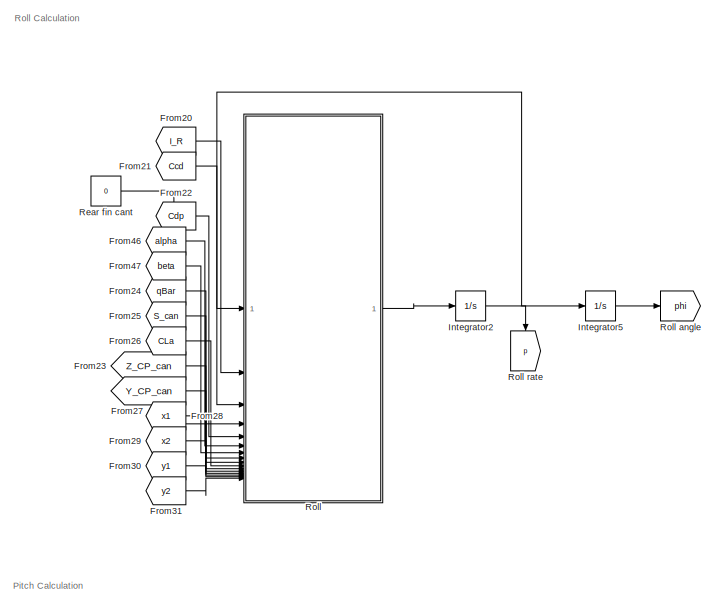
[diagram: Nonlinear Dynamics - part 1/3, top center region]
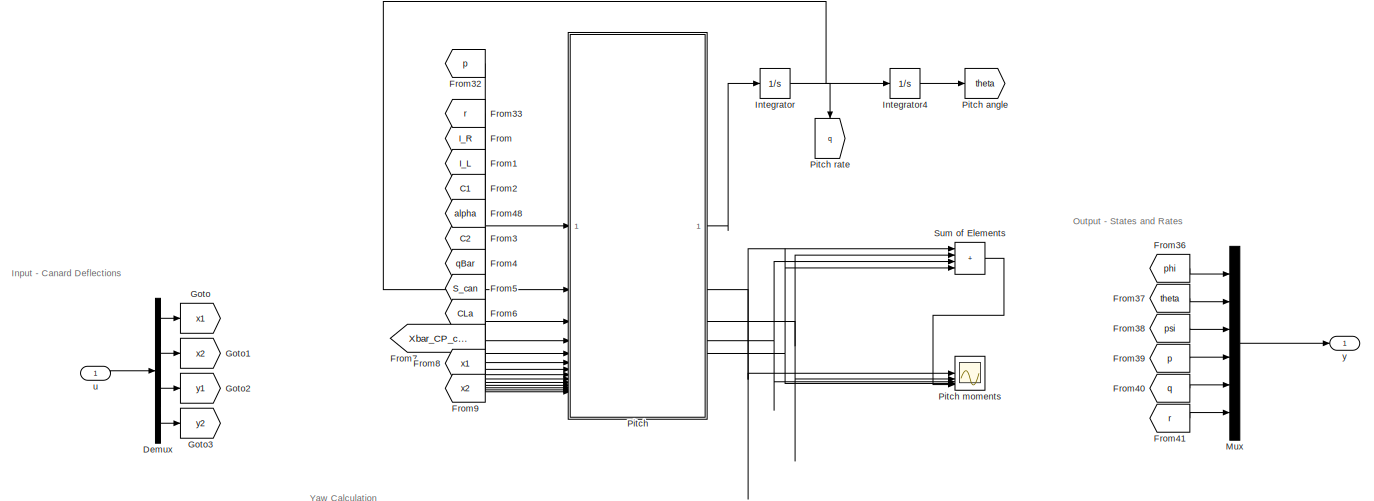
[diagram: Nonlinear Dynamics - part 2/3, full width, middle band]
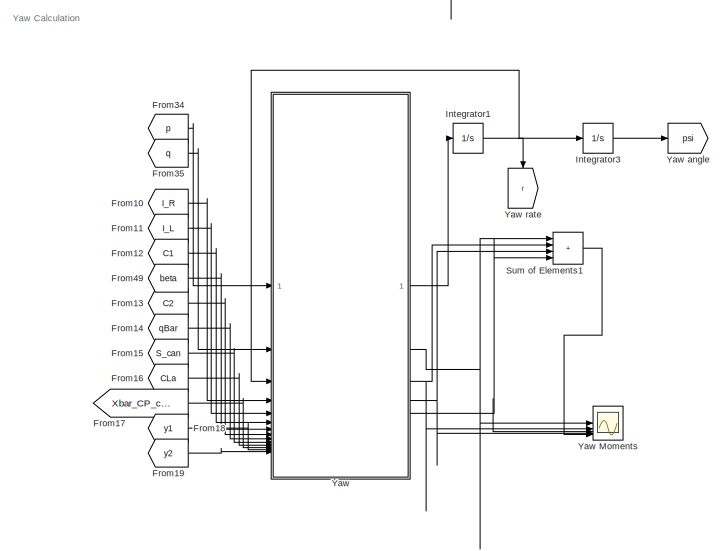
[diagram: Nonlinear Dynamics - part 3/3, bottom center region]
BLOCK [SubSystem] Nonlinear Dynamics
BLOCK [Demux] Nonlinear Dynamics/Demux
BLOCK [From] Nonlinear Dynamics/From
  GotoTag = I_R
  TagVisibility = global
BLOCK [From] Nonlinear Dynamics/From1
  GotoTag = I_L
  TagVisibility = global
BLOCK [From] Nonlinear Dynamics/From10
  GotoTag = I_R
  TagVisibility = global
BLOCK [From] Nonlinear Dynamics/From11
  GotoTag = I_L
  TagVisibility = global
BLOCK [From] Nonlinear Dynamics/From12
  GotoTag = C1
  TagVisibility = global
BLOCK [From] Nonlinear Dynamics/From13
  GotoTag = C2
  TagVisibility = global
BLOCK [From] Nonlinear Dynamics/From14
  GotoTag = qBar
  TagVisibility = global
BLOCK [From] Nonlinear Dynamics/From15
  GotoTag = S_can
  TagVisibility = global
BLOCK [From] Nonlinear Dynamics/From16
  GotoTag = CLa
  TagVisibility = global
BLOCK [From] Nonlinear Dynamics/From17
  GotoTag = Xbar_CP_can
  TagVisibility = global
BLOCK [From] Nonlinear Dynamics/From18
  GotoTag = y1
  TagVisibility = global
BLOCK [From] Nonlinear Dynamics/From19
  GotoTag = y2
  TagVisibility = global
BLOCK [From] Nonlinear Dynamics/From2
  GotoTag = C1
  TagVisibility = global
BLOCK [From] Nonlinear Dynamics/From20
  GotoTag = I_R
  TagVisibility = global
BLOCK [From] Nonlinear Dynamics/From21
  GotoTag = Ccd
  TagVisibility = global
BLOCK [From] Nonlinear Dynamics/From22
  GotoTag = Cdp
  TagVisibility = global
BLOCK [From] Nonlinear Dynamics/From23
  GotoTag = Z_CP_can
  TagVisibility = global
BLOCK [From] Nonlinear Dynamics/From24
  GotoTag = qBar
  TagVisibility = global
BLOCK [From] Nonlinear Dynamics/From25
  GotoTag = S_can
  TagVisibility = global
BLOCK [From] Nonlinear Dynamics/From26
  GotoTag = CLa
  TagVisibility = global
BLOCK [From] Nonlinear Dynamics/From27
  GotoTag = Y_CP_can
  TagVisibility = global
BLOCK [From] Nonlinear Dynamics/From28
  GotoTag = x1
  TagVisibility = global
BLOCK [From] Nonlinear Dynamics/From29
  GotoTag = x2
  TagVisibility = global
BLOCK [From] Nonlinear Dynamics/From3
  GotoTag = C2
  TagVisibility = global
BLOCK [From] Nonlinear Dynamics/From30
  GotoTag = y1
  TagVisibility = global
BLOCK [From] Nonlinear Dynamics/From31
  GotoTag = y2
  TagVisibility = global
BLOCK [From] Nonlinear Dynamics/From32
  GotoTag = p
  TagVisibility = global
BLOCK [From] Nonlinear Dynamics/From33
  GotoTag = r
  TagVisibility = global
BLOCK [From] Nonlinear Dynamics/From34
  GotoTag = p
  TagVisibility = global
BLOCK [From] Nonlinear Dynamics/From35
  GotoTag = q
  TagVisibility = global
BLOCK [From] Nonlinear Dynamics/From36
  GotoTag = phi
  TagVisibility = global
BLOCK [From] Nonlinear Dynamics/From37
  GotoTag = theta
  TagVisibility = global
BLOCK [From] Nonlinear Dynamics/From38
  GotoTag = psi
  TagVisibility = global
BLOCK [From] Nonlinear Dynamics/From39
  GotoTag = p
  TagVisibility = global
BLOCK [From] Nonlinear Dynamics/From4
  GotoTag = qBar
  TagVisibility = global
BLOCK [From] Nonlinear Dynamics/From40
  GotoTag = q
  TagVisibility = global
BLOCK [From] Nonlinear Dynamics/From41
  GotoTag = r
  TagVisibility = global
BLOCK [From] Nonlinear Dynamics/From46
  GotoTag = alpha
  TagVisibility = global
BLOCK [From] Nonlinear Dynamics/From47
  GotoTag = beta
  TagVisibility = global
BLOCK [From] Nonlinear Dynamics/From48
  GotoTag = alpha
  TagVisibility = global
BLOCK [From] Nonlinear Dynamics/From49
  GotoTag = beta
  TagVisibility = global
BLOCK [From] Nonlinear Dynamics/From5
  GotoTag = S_can
  TagVisibility = global
BLOCK [From] Nonlinear Dynamics/From6
  GotoTag = CLa
  TagVisibility = global
BLOCK [From] Nonlinear Dynamics/From7
  GotoTag = Xbar_CP_can
  TagVisibility = global
BLOCK [From] Nonlinear Dynamics/From8
  GotoTag = x1
  TagVisibility = global
BLOCK [From] Nonlinear Dynamics/From9
  GotoTag = x2
  TagVisibility = global
BLOCK [Goto] Nonlinear Dynamics/Goto
  GotoTag = x1
  TagVisibility = global
BLOCK [Goto] Nonlinear Dynamics/Goto1
  GotoTag = x2
  TagVisibility = global
BLOCK [Goto] Nonlinear Dynamics/Goto2
  GotoTag = y1
  TagVisibility = global
BLOCK [Goto] Nonlinear Dynamics/Goto3
  GotoTag = y2
  TagVisibility = global
BLOCK [Integrator] Nonlinear Dynamics/Integrator
BLOCK [Integrator] Nonlinear Dynamics/Integrator1
BLOCK [Integrator] Nonlinear Dynamics/Integrator2
BLOCK [Integrator] Nonlinear Dynamics/Integrator3
BLOCK [Integrator] Nonlinear Dynamics/Integrator4
BLOCK [Integrator] Nonlinear Dynamics/Integrator5
BLOCK [Mux] Nonlinear Dynamics/Mux
  DisplayOption = bar
  Inputs = 6
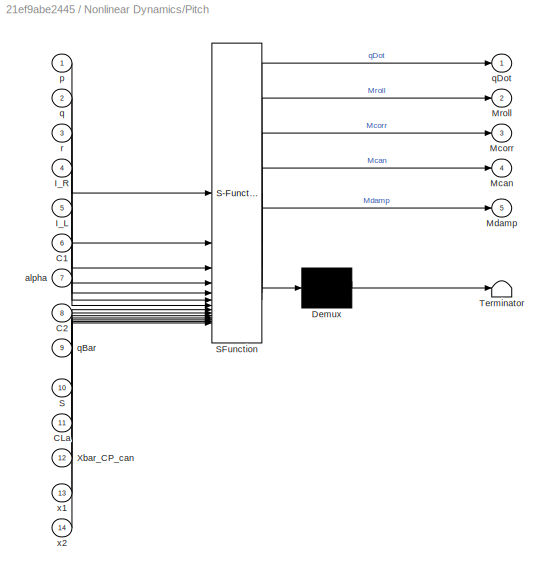
BLOCK [SubSystem] Nonlinear Dynamics/Pitch
  ErrorFcn = Stateflow.Translate.translate
  PermitHierarchicalResolution = ExplicitOnly
  SFBlockType = MATLAB Function
  TreatAsAtomicUnit = on
BLOCK [Goto] Nonlinear Dynamics/Pitch angle
  GotoTag = theta
  TagVisibility = global
BLOCK [Scope] Nonlinear Dynamics/Pitch moments
  Floating = off
  NumInputPorts = 5
  ScopeSpecificationString = Simulink.scopes.TimeScopeBlockCfg('CurrentConfiguration', extmgr.ConfigurationSet(extmgr.Configuration('Core','General UI',true),extmgr.Configuration('Core','Source UI',true),extmgr.Configuration('Sources','WiredSimulink',true,'DataLoggingVariableName','ScopeData1'),extmgr.Configuration('Visuals','Time Domain',true,'SerializedDisplays',{struct('MinYLimReal','-11.71807','MaxYLimReal','12.2229','YLa...<+1525ch>
BLOCK [Goto] Nonlinear Dynamics/Pitch rate
  GotoTag = q
  NameLocation = left
  TagVisibility = global
BLOCK [Demux] Nonlinear Dynamics/Pitch/ Demux 
  Outputs = 1
BLOCK [S-Function] Nonlinear Dynamics/Pitch/ SFunction 
  EnableBusSupport = on
  FunctionName = sf_sfun
  PortCounts = [14 6]
  SFcnIsStateOwnerBlock = off
  SFunctionDeploymentMode = off
  Tag = Stateflow S-Function 2
BLOCK [Terminator] Nonlinear Dynamics/Pitch/ Terminator 
BLOCK [Inport] Nonlinear Dynamics/Pitch/C1
  Port = 6
BLOCK [Inport] Nonlinear Dynamics/Pitch/C2
  Port = 8
BLOCK [Inport] Nonlinear Dynamics/Pitch/CLa
  Port = 11
BLOCK [Inport] Nonlinear Dynamics/Pitch/I_L
  Port = 5
BLOCK [Inport] Nonlinear Dynamics/Pitch/I_R
  Port = 4
BLOCK [Outport] Nonlinear Dynamics/Pitch/Mcan
  Port = 4
BLOCK [Outport] Nonlinear Dynamics/Pitch/Mcorr
  Port = 3
BLOCK [Outport] Nonlinear Dynamics/Pitch/Mdamp
  Port = 5
BLOCK [Outport] Nonlinear Dynamics/Pitch/Mroll
  Port = 2
BLOCK [Inport] Nonlinear Dynamics/Pitch/S
  Port = 10
BLOCK [Inport] Nonlinear Dynamics/Pitch/Xbar_CP_can
  Port = 12
BLOCK [Inport] Nonlinear Dynamics/Pitch/alpha
  Port = 7
BLOCK [Inport] Nonlinear Dynamics/Pitch/p
BLOCK [Inport] Nonlinear Dynamics/Pitch/q
  Port = 2
BLOCK [Inport] Nonlinear Dynamics/Pitch/qBar
  Port = 9
BLOCK [Outport] Nonlinear Dynamics/Pitch/qDot
BLOCK [Inport] Nonlinear Dynamics/Pitch/r
  Port = 3
BLOCK [Inport] Nonlinear Dynamics/Pitch/x1
  Port = 13
BLOCK [Inport] Nonlinear Dynamics/Pitch/x2
  Port = 14
BLOCK [Constant] Nonlinear Dynamics/Rear fin cant
  Value = 0
BLOCK [SubSystem] Nonlinear Dynamics/Roll
  ErrorFcn = Stateflow.Translate.translate
  PermitHierarchicalResolution = ExplicitOnly
  SFBlockType = MATLAB Function
  TreatAsAtomicUnit = on
BLOCK [Goto] Nonlinear Dynamics/Roll angle
  GotoTag = phi
  TagVisibility = global
BLOCK [Goto] Nonlinear Dynamics/Roll rate
  GotoTag = p
  NameLocation = left
  TagVisibility = global
BLOCK [Demux] Nonlinear Dynamics/Roll/ Demux 
  Outputs = 1
BLOCK [S-Function] Nonlinear Dynamics/Roll/ SFunction 
  EnableBusSupport = on
  FunctionName = sf_sfun
  PortCounts = [16 2]
  SFcnIsStateOwnerBlock = off
  SFunctionDeploymentMode = off
  Tag = Stateflow S-Function 3
BLOCK [Terminator] Nonlinear Dynamics/Roll/ Terminator 
BLOCK [Inport] Nonlinear Dynamics/Roll/CLa
  Port = 10
BLOCK [Inport] Nonlinear Dynamics/Roll/Cdp
  Port = 5
BLOCK [Inport] Nonlinear Dynamics/Roll/I_R
  Port = 2
BLOCK [Inport] Nonlinear Dynamics/Roll/S
  Port = 9
BLOCK [Inport] Nonlinear Dynamics/Roll/Z_CP_can
  Port = 11
BLOCK [Inport] Nonlinear Dynamics/Roll/alpha
  Port = 6
BLOCK [Inport] Nonlinear Dynamics/Roll/beta
  Port = 7
BLOCK [Inport] Nonlinear Dynamics/Roll/p
BLOCK [Outport] Nonlinear Dynamics/Roll/pDot
BLOCK [Inport] Nonlinear Dynamics/Roll/qBar
  Port = 8
BLOCK [Inport] Nonlinear Dynamics/Roll/unused
  Port = 3
BLOCK [Inport] Nonlinear Dynamics/Roll/unused12
  Port = 4
BLOCK [Inport] Nonlinear Dynamics/Roll/unused13
  Port = 12
BLOCK [Inport] Nonlinear Dynamics/Roll/x1
  Port = 13
BLOCK [Inport] Nonlinear Dynamics/Roll/x2
  Port = 14
BLOCK [Inport] Nonlinear Dynamics/Roll/y1
  Port = 15
BLOCK [Inport] Nonlinear Dynamics/Roll/y2
  Port = 16
BLOCK [Sum] Nonlinear Dynamics/Sum of Elements
  IconShape = rectangular
  Inputs = ++++
BLOCK [Sum] Nonlinear Dynamics/Sum of Elements1
  IconShape = rectangular
  Inputs = ++++
BLOCK [SubSystem] Nonlinear Dynamics/Yaw
  ErrorFcn = Stateflow.Translate.translate
  PermitHierarchicalResolution = ExplicitOnly
  SFBlockType = MATLAB Function
  TreatAsAtomicUnit = on
BLOCK [Scope] Nonlinear Dynamics/Yaw Moments
  Floating = off
  NumInputPorts = 5
  ScopeSpecificationString = Simulink.scopes.TimeScopeBlockCfg('CurrentConfiguration', extmgr.ConfigurationSet(extmgr.Configuration('Core','General UI',true),extmgr.Configuration('Core','Source UI',true),extmgr.Configuration('Sources','WiredSimulink',true,'DataLoggingVariableName','ScopeData1'),extmgr.Configuration('Visuals','Time Domain',true,'SerializedDisplays',{struct('MinYLimReal','-32.75044','MaxYLimReal','29.47213','YL...<+1477ch>
BLOCK [Goto] Nonlinear Dynamics/Yaw angle
  GotoTag = psi
  TagVisibility = global
BLOCK [Goto] Nonlinear Dynamics/Yaw rate
  GotoTag = r
  NameLocation = left
  TagVisibility = global
BLOCK [Demux] Nonlinear Dynamics/Yaw/ Demux 
  Outputs = 1
BLOCK [S-Function] Nonlinear Dynamics/Yaw/ SFunction 
  EnableBusSupport = on
  FunctionName = sf_sfun
  PortCounts = [14 6]
  SFcnIsStateOwnerBlock = off
  SFunctionDeploymentMode = off
  Tag = Stateflow S-Function 1
BLOCK [Terminator] Nonlinear Dynamics/Yaw/ Terminator 
BLOCK [Inport] Nonlinear Dynamics/Yaw/C1
  Port = 6
BLOCK [Inport] Nonlinear Dynamics/Yaw/C2
  Port = 8
BLOCK [Inport] Nonlinear Dynamics/Yaw/CLa
  Port = 11
BLOCK [Inport] Nonlinear Dynamics/Yaw/I_L
  Port = 5
BLOCK [Inport] Nonlinear Dynamics/Yaw/I_R
  Port = 4
BLOCK [Outport] Nonlinear Dynamics/Yaw/Ncan
  Port = 5
BLOCK [Outport] Nonlinear Dynamics/Yaw/Ncorr
  Port = 3
BLOCK [Outport] Nonlinear Dynamics/Yaw/Ndamp
  Port = 4
BLOCK [Outport] Nonlinear Dynamics/Yaw/Nroll
  Port = 2
BLOCK [Inport] Nonlinear Dynamics/Yaw/S
  Port = 10
BLOCK [Inport] Nonlinear Dynamics/Yaw/Xbar_CP_can
  Port = 12
BLOCK [Inport] Nonlinear Dynamics/Yaw/beta
  Port = 7
BLOCK [Inport] Nonlinear Dynamics/Yaw/p
BLOCK [Inport] Nonlinear Dynamics/Yaw/q
  Port = 2
BLOCK [Inport] Nonlinear Dynamics/Yaw/qBar
  Port = 9
BLOCK [Inport] Nonlinear Dynamics/Yaw/r
  Port = 3
BLOCK [Outport] Nonlinear Dynamics/Yaw/rDot
BLOCK [Inport] Nonlinear Dynamics/Yaw/y1
  Port = 13
BLOCK [Inport] Nonlinear Dynamics/Yaw/y2
  Port = 14
BLOCK [Inport] Nonlinear Dynamics/u
BLOCK [Outport] Nonlinear Dynamics/y
BLOCK [Lookup_n-D] OpenRocket I_L
  BreakpointsForDimension1 = uncertain.time
  InputPortMap = u0
  InternalRulePriority = Speed
  NumberOfTableDimensions = 1
  RndMeth = Simplest
  Table = uncertain.I_L
BLOCK [Lookup_n-D] OpenRocket I_R
  BreakpointsForDimension1 = uncertain.time
  InputPortMap = u0
  InternalRulePriority = Speed
  NumberOfTableDimensions = 1
  RndMeth = Simplest
  Table = uncertain.I_R
BLOCK [Lookup_n-D] OpenRocket Mach No
  BreakpointsForDimension1 = OR.t
  InputPortMap = u0
  InternalRulePriority = Speed
  NumberOfTableDimensions = 1
  RndMeth = Simplest
  Table = OR.M
BLOCK [Lookup_n-D] OpenRocket Velocity
  BreakpointsForDimension1 = OR.t
  InputPortMap = u0
  InternalRulePriority = Speed
  NumberOfTableDimensions = 1
  RndMeth = Simplest
  Table = OR.v
BLOCK [Lookup_n-D] OpenRocket X_CG
  BreakpointsForDimension1 = uncertain.time
  InputPortMap = u0
  InternalRulePriority = Speed
  NumberOfTableDimensions = 1
  RndMeth = Simplest
  Table = uncertain.X_CG
BLOCK [Lookup_n-D] OpenRocket alt
  BreakpointsForDimension1 = OR.t
  InputPortMap = u0
  InternalRulePriority = Speed
  NumberOfTableDimensions = 1
  RndMeth = Simplest
  Table = OR.h
BLOCK [Lookup_n-D] OpenRocket mDot
  BreakpointsForDimension1 = OR.t
  InputPortMap = u0
  InternalRulePriority = Speed
  NumberOfTableDimensions = 1
  RndMeth = Simplest
  Table = OR.mDot
BLOCK [Product] Product
BLOCK [Reference] Radians to Degrees  REF=simulink_extras/Transformations/Radians
to Degrees
  SourceBlock = simulink_extras/Transformations/Radians\nto Degrees
  SourceType = RadiansToDegrees
BLOCK [Reference] Radians to Degrees1  REF=simulink_extras/Transformations/Radians
to Degrees
  SourceBlock = simulink_extras/Transformations/Radians\nto Degrees
  SourceType = RadiansToDegrees
BLOCK [Reference] Radians to Degrees10  REF=simulink_extras/Transformations/Radians
to Degrees
  SourceBlock = simulink_extras/Transformations/Radians\nto Degrees
  SourceType = RadiansToDegrees
BLOCK [Reference] Radians to Degrees11  REF=simulink_extras/Transformations/Radians
to Degrees
  SourceBlock = simulink_extras/Transformations/Radians\nto Degrees
  SourceType = RadiansToDegrees
BLOCK [Reference] Radians to Degrees12  REF=simulink_extras/Transformations/Radians
to Degrees
  SourceBlock = simulink_extras/Transformations/Radians\nto Degrees
  SourceType = RadiansToDegrees
BLOCK [Reference] Radians to Degrees13  REF=simulink_extras/Transformations/Radians
to Degrees
  SourceBlock = simulink_extras/Transformations/Radians\nto Degrees
  SourceType = RadiansToDegrees
BLOCK [Reference] Radians to Degrees14  REF=simulink_extras/Transformations/Radians
to Degrees
  SourceBlock = simulink_extras/Transformations/Radians\nto Degrees
  SourceType = RadiansToDegrees
BLOCK [Reference] Radians to Degrees15  REF=simulink_extras/Transformations/Radians
to Degrees
  SourceBlock = simulink_extras/Transformations/Radians\nto Degrees
  SourceType = RadiansToDegrees
BLOCK [Reference] Radians to Degrees16  REF=simulink_extras/Transformations/Radians
to Degrees
  SourceBlock = simulink_extras/Transformations/Radians\nto Degrees
  SourceType = RadiansToDegrees
BLOCK [Reference] Radians to Degrees17  REF=simulink_extras/Transformations/Radians
to Degrees
  SourceBlock = simulink_extras/Transformations/Radians\nto Degrees
  SourceType = RadiansToDegrees
BLOCK [Reference] Radians to Degrees18  REF=simulink_extras/Transformations/Radians
to Degrees
  SourceBlock = simulink_extras/Transformations/Radians\nto Degrees
  SourceType = RadiansToDegrees
BLOCK [Reference] Radians to Degrees19  REF=simulink_extras/Transformations/Radians
to Degrees
  SourceBlock = simulink_extras/Transformations/Radians\nto Degrees
  SourceType = RadiansToDegrees
BLOCK [Reference] Radians to Degrees2  REF=simulink_extras/Transformations/Radians
to Degrees
  SourceBlock = simulink_extras/Transformations/Radians\nto Degrees
  SourceType = RadiansToDegrees
BLOCK [Reference] Radians to Degrees3  REF=simulink_extras/Transformations/Radians
to Degrees
  SourceBlock = simulink_extras/Transformations/Radians\nto Degrees
  SourceType = RadiansToDegrees
BLOCK [Reference] Radians to Degrees4  REF=simulink_extras/Transformations/Radians
to Degrees
  SourceBlock = simulink_extras/Transformations/Radians\nto Degrees
  SourceType = RadiansToDegrees
BLOCK [Reference] Radians to Degrees5  REF=simulink_extras/Transformations/Radians
to Degrees
  SourceBlock = simulink_extras/Transformations/Radians\nto Degrees
  SourceType = RadiansToDegrees
BLOCK [Reference] Radians to Degrees6  REF=simulink_extras/Transformations/Radians
to Degrees
  SourceBlock = simulink_extras/Transformations/Radians\nto Degrees
  SourceType = RadiansToDegrees
BLOCK [Reference] Radians to Degrees7  REF=simulink_extras/Transformations/Radians
to Degrees
  SourceBlock = simulink_extras/Transformations/Radians\nto Degrees
  SourceType = RadiansToDegrees
BLOCK [Reference] Radians to Degrees8  REF=simulink_extras/Transformations/Radians
to Degrees
  SourceBlock = simulink_extras/Transformations/Radians\nto Degrees
  SourceType = RadiansToDegrees
BLOCK [Reference] Radians to Degrees9  REF=simulink_extras/Transformations/Radians
to Degrees
  SourceBlock = simulink_extras/Transformations/Radians\nto Degrees
  SourceType = RadiansToDegrees
BLOCK [Scope] Scope1
  Floating = off
  NumInputPorts = 1
  ScopeSpecificationString = Simulink.scopes.TimeScopeBlockCfg('CurrentConfiguration', extmgr.ConfigurationSet(extmgr.Configuration('Core','General UI',true),extmgr.Configuration('Core','Source UI',true),extmgr.Configuration('Sources','WiredSimulink',true,'DataLoggingVariableName','ScopeData1'),extmgr.Configuration('Visuals','Time Domain',true,'SerializedDisplays',{struct('MinYLimReal','-1.50551','MaxYLimReal','1.48417','YLab...<+1493ch>
BLOCK [Sum] Sum
  Inputs = |+-
BLOCK [Sum] Sum of Elements
  IconShape = rectangular
  Inputs = ++++
BLOCK [Sum] Sum of Elements1
  IconShape = rectangular
  Inputs = +++
BLOCK [Sum] Sum1
  Inputs = |+-
BLOCK [Constant] Windspeed
  Value = 5
BLOCK [Outport] airspeed_x
  Port = 8
  SignalName = airspeed_x
BLOCK [Outport] airspeed_y
  Port = 9
  SignalName = airspeed_y
BLOCK [Outport] airspeed_z
  Port = 10
  SignalName = airspeed_z
BLOCK [Scope] alpha and beta (degrees)
  Floating = off
  NumInputPorts = 3
  ScopeSpecificationString = Simulink.scopes.TimeScopeBlockCfg('CurrentConfiguration', extmgr.ConfigurationSet(extmgr.Configuration('Core','General UI',true),extmgr.Configuration('Core','Source UI',true),extmgr.Configuration('Sources','WiredSimulink',true,'DataLoggingVariableName','ScopeData1'),extmgr.Configuration('Visuals','Time Domain',true,'SerializedDisplays',{struct('MinYLimReal','-0.00704','MaxYLimReal','0.00493','YLab...<+1795ch>
BLOCK [Outport] alphaOut
  Port = 11
  SignalName = alpha
BLOCK [Outport] betaOut
  Port = 12
  SignalName = beta
BLOCK [Constant] p
  Value = 0
BLOCK [Constant] phi
  Value = 0
BLOCK [Constant] psi
  Value = 0
BLOCK [Outport] psiOut
  Port = 7
  SignalName = yawAngle
BLOCK [Constant] q
  Value = 0
BLOCK [Constant] r
  Value = 0
BLOCK [From] rocket velocity
  GotoTag = v
  TagVisibility = global
BLOCK [Constant] theta
  Value = 0
BLOCK [Outport] thetaOut
  SignalName = pitchAngle
BLOCK [Outport] vOut
  Port = 6
  SignalName = v
BLOCK [Outport] x1Out
  Port = 2
  SignalName = x1
BLOCK [Outport] x2Out
  Port = 3
  SignalName = x2
BLOCK [Outport] y1Out
  Port = 4
  SignalName = y1
BLOCK [Outport] y2Out
  Port = 5
  SignalName = y2
ANNOTATION (root): (0 = pure z+)
ANNOTATION (root): Calculate CNa and CP
ANNOTATION (root): Calculate moment coefficients
ANNOTATION (root): Run the control system with nonlinear dynamics
ANNOTATION (root): Setup parameters
ANNOTATION (root): View results
ANNOTATION (root): Angle of attack and Sideslip Scope
ANNOTATION (root): CP and CG Locations
ANNOTATION (root): Calculate Angle of Attack and Sideslip
ANNOTATION (root): Canard Deflection Scope
ANNOTATION (root): Canard Parameters
ANNOTATION (root): Control System
ANNOTATION (root): Euler Angle Scope
ANNOTATION (root): Euler Rates Scope
ANNOTATION (root): Log Outputs
ANNOTATION (root): Moment Coefficients
ANNOTATION (root): Read in OpenRocket data
ANNOTATION (root): Rocket Parameters
ANNOTATION Nonlinear Dynamics: Input - Canard Deflections
ANNOTATION Nonlinear Dynamics: Output - States and Rates
ANNOTATION Nonlinear Dynamics: Pitch Calculation
ANNOTATION Nonlinear Dynamics: Roll Calculation
ANNOTATION Nonlinear Dynamics: Yaw Calculation
NET Calculate Angle of Attack and Sideslip/Add:1 -> Calculate Angle of Attack and Sideslip/Display2:1, Calculate Angle of Attack and Sideslip/Quaternion Rotation:2
NET Calculate Angle of Attack and Sideslip/Constant16:1 -> Calculate Angle of Attack and Sideslip/Mux2:2, Calculate Angle of Attack and Sideslip/Mux2:3
NET Calculate Angle of Attack and Sideslip/Constant1:1 -> Calculate Angle of Attack and Sideslip/Mux3:2, Calculate Angle of Attack and Sideslip/Mux3:3
LINE Calculate Angle of Attack and Sideslip/Constant:1 -> Calculate Angle of Attack and Sideslip/Mux2:1
LINE Calculate Angle of Attack and Sideslip/Cross-wind Angle:1 -> Calculate Angle of Attack and Sideslip/MATLAB Function4:2
LINE Calculate Angle of Attack and Sideslip/Cross-wind Speed:1 -> Calculate Angle of Attack and Sideslip/MATLAB Function4:1
LINE Calculate Angle of Attack and Sideslip/Demux1:1 -> Calculate Angle of Attack and Sideslip/alpha:1
LINE Calculate Angle of Attack and Sideslip/Demux1:2 -> Calculate Angle of Attack and Sideslip/beta:1
LINE Calculate Angle of Attack and Sideslip/Demux1:3 -> Calculate Angle of Attack and Sideslip/alphaTotal:1
LINE Calculate Angle of Attack and Sideslip/Demux:1 -> Calculate Angle of Attack and Sideslip/airspeed_x:1
LINE Calculate Angle of Attack and Sideslip/Demux:2 -> Calculate Angle of Attack and Sideslip/airspeed_y:1
LINE Calculate Angle of Attack and Sideslip/Demux:3 -> Calculate Angle of Attack and Sideslip/airspeed_z:1
LINE Calculate Angle of Attack and Sideslip/Gain:1 -> Calculate Angle of Attack and Sideslip/Mux1:3
LINE Calculate Angle of Attack and Sideslip/MATLAB Function4:1 -> Calculate Angle of Attack and Sideslip/Add:1
NET Calculate Angle of Attack and Sideslip/MATLAB Function5:1 -> Calculate Angle of Attack and Sideslip/Demux1:1, Calculate Angle of Attack and Sideslip/Display4:1
NET Calculate Angle of Attack and Sideslip/Mux1:1 -> Calculate Angle of Attack and Sideslip/Display1:1, Calculate Angle of Attack and Sideslip/Rotation Angles to Quaternions:1
LINE Calculate Angle of Attack and Sideslip/Mux2:1 -> Calculate Angle of Attack and Sideslip/MATLAB Function5:2
LINE Calculate Angle of Attack and Sideslip/Mux3:1 -> Calculate Angle of Attack and Sideslip/Add:2
LINE Calculate Angle of Attack and Sideslip/Phi:1 -> Calculate Angle of Attack and Sideslip/Mux1:1
LINE Calculate Angle of Attack and Sideslip/Psi:1 -> Calculate Angle of Attack and Sideslip/Gain:1
NET Calculate Angle of Attack and Sideslip/Quaternion Rotation:1 -> Calculate Angle of Attack and Sideslip/Demux:1, Calculate Angle of Attack and Sideslip/Display:1, Calculate Angle of Attack and Sideslip/MATLAB Function5:1
LINE Calculate Angle of Attack and Sideslip/Rotation Angles to Quaternions:1 -> Calculate Angle of Attack and Sideslip/Quaternion Rotation:1
LINE Calculate Angle of Attack and Sideslip/Theta:1 -> Calculate Angle of Attack and Sideslip/Mux1:2
NET Calculate Angle of Attack and Sideslip/v:1 -> Calculate Angle of Attack and Sideslip/Display3:1, Calculate Angle of Attack and Sideslip/Mux3:1
LINE Calculate Angle of Attack and Sideslip:1 -> Goto:1
LINE Calculate Angle of Attack and Sideslip:2 -> Goto12:1
LINE Calculate Angle of Attack and Sideslip:3 -> Goto15:1
LINE Calculate Angle of Attack and Sideslip:4 -> airspeed_x:1
LINE Calculate Angle of Attack and Sideslip:5 -> airspeed_y:1
LINE Calculate Angle of Attack and Sideslip:6 -> airspeed_z:1
LINE Calculate C1/From1:1 -> Calculate C1/Product:2
LINE Calculate C1/From2:1 -> Calculate C1/Product:3
LINE Calculate C1/From4:1 -> Calculate C1/Sum:2
LINE Calculate C1/From5:1 -> Calculate C1/Sum:1
LINE Calculate C1/From:1 -> Calculate C1/Product:1
LINE Calculate C1/Product:1 -> Calculate C1/C1:1
LINE Calculate C1/Sum:1 -> Calculate C1/Product:4
NET Calculate C1:1 -> Display:1, Goto30:1
LINE Calculate C2/Constant1:1 -> Calculate C2/Sum4:2
LINE Calculate C2/Constant:1 -> Calculate C2/Product4:1
LINE Calculate C2/From10:1 -> Calculate C2/Sum3:1
NET Calculate C2/From11:1 -> Calculate C2/Sum1:2, Calculate C2/Sum2:2, Calculate C2/Sum3:2, Calculate C2/Sum4:1, Calculate C2/Sum:2
LINE Calculate C2/From12:1 -> Calculate C2/Product5:2
LINE Calculate C2/From1:1 -> Calculate C2/Product4:3
LINE Calculate C2/From2:1 -> Calculate C2/Product4:4
LINE Calculate C2/From3:1 -> Calculate C2/Product:1
LINE Calculate C2/From4:1 -> Calculate C2/Sum:1
LINE Calculate C2/From5:1 -> Calculate C2/Product1:1
LINE Calculate C2/From6:1 -> Calculate C2/Sum1:1
LINE Calculate C2/From7:1 -> Calculate C2/Product2:1
LINE Calculate C2/From8:1 -> Calculate C2/Sum2:1
LINE Calculate C2/From9:1 -> Calculate C2/Product3:1
LINE Calculate C2/From:1 -> Calculate C2/Product4:2
LINE Calculate C2/Product1:1 -> Calculate C2/Sum of Elements:2
LINE Calculate C2/Product2:1 -> Calculate C2/Sum of Elements:3
LINE Calculate C2/Product3:1 -> Calculate C2/Sum of Elements:4
LINE Calculate C2/Product4:1 -> Calculate C2/Sum5:1
LINE Calculate C2/Product5:1 -> Calculate C2/Sum5:2
LINE Calculate C2/Product:1 -> Calculate C2/Sum of Elements:1
LINE Calculate C2/Square1:1 -> Calculate C2/Product1:2
LINE Calculate C2/Square2:1 -> Calculate C2/Product2:2
LINE Calculate C2/Square3:1 -> Calculate C2/Product3:2
LINE Calculate C2/Square4:1 -> Calculate C2/Product5:1
LINE Calculate C2/Square:1 -> Calculate C2/Product:2
LINE Calculate C2/Sum of Elements:1 -> Calculate C2/Product4:5
LINE Calculate C2/Sum1:1 -> Calculate C2/Square1:1
LINE Calculate C2/Sum2:1 -> Calculate C2/Square2:1
LINE Calculate C2/Sum3:1 -> Calculate C2/Square3:1
LINE Calculate C2/Sum4:1 -> Calculate C2/Square4:1
LINE Calculate C2/Sum5:1 -> Calculate C2/C2:1
LINE Calculate C2/Sum:1 -> Calculate C2/Square:1
NET Calculate C2:1 -> Display1:1, Goto31:1
NET Calculate CP with canards/CNa_body:1 -> Calculate CP with canards/Product1:1, Calculate CP with canards/Sum of Elements1:2
NET Calculate CP with canards/CNa_can:1 -> Calculate CP with canards/Product3:1, Calculate CP with canards/Sum of Elements1:4
NET Calculate CP with canards/CNa_fins:1 -> Calculate CP with canards/Product2:1, Calculate CP with canards/Sum of Elements1:3
NET Calculate CP with canards/CNa_nose:1 -> Calculate CP with canards/Product:1, Calculate CP with canards/Sum of Elements1:1
LINE Calculate CP with canards/CP_body:1 -> Calculate CP with canards/Product1:2
LINE Calculate CP with canards/CP_can:1 -> Calculate CP with canards/Product3:2
LINE Calculate CP with canards/CP_fins:1 -> Calculate CP with canards/Product2:2
LINE Calculate CP with canards/CP_nose:1 -> Calculate CP with canards/Product:2
LINE Calculate CP with canards/Divide:1 -> Calculate CP with canards/X_CP:1
LINE Calculate CP with canards/Product1:1 -> Calculate CP with canards/Sum of Elements:2
LINE Calculate CP with canards/Product2:1 -> Calculate CP with canards/Sum of Elements:3
LINE Calculate CP with canards/Product3:1 -> Calculate CP with canards/Sum of Elements:4
LINE Calculate CP with canards/Product:1 -> Calculate CP with canards/Sum of Elements:1
LINE Calculate CP with canards/Sum of Elements1:1 -> Calculate CP with canards/Divide:2
LINE Calculate CP with canards/Sum of Elements:1 -> Calculate CP with canards/Divide:1
LINE Calculate CP with canards:1 -> Goto46:1
NET Calculate CP without canards/CNa_body:1 -> Calculate CP without canards/Product1:1, Calculate CP without canards/Sum of Elements1:2
NET Calculate CP without canards/CNa_fins:1 -> Calculate CP without canards/Product2:1, Calculate CP without canards/Sum of Elements1:3
NET Calculate CP without canards/CNa_nose:1 -> Calculate CP without canards/Product:1, Calculate CP without canards/Sum of Elements1:1
LINE Calculate CP without canards/CP_body:1 -> Calculate CP without canards/Product1:2
LINE Calculate CP without canards/CP_fins:1 -> Calculate CP without canards/Product2:2
LINE Calculate CP without canards/CP_nose:1 -> Calculate CP without canards/Product:2
LINE Calculate CP without canards/Divide:1 -> Calculate CP without canards/X_CP_noCan:1
LINE Calculate CP without canards/Product1:1 -> Calculate CP without canards/Sum of Elements:2
LINE Calculate CP without canards/Product2:1 -> Calculate CP without canards/Sum of Elements:3
LINE Calculate CP without canards/Product:1 -> Calculate CP without canards/Sum of Elements:1
LINE Calculate CP without canards/Sum of Elements1:1 -> Calculate CP without canards/Divide:2
LINE Calculate CP without canards/Sum of Elements:1 -> Calculate CP without canards/Divide:1
LINE Calculate CP without canards:1 -> Goto45:1
LINE Calculate Ccd/From1:1 -> Calculate Ccd/Product:1
LINE Calculate Ccd/From2:1 -> Calculate Ccd/Product:3
LINE Calculate Ccd/From3:1 -> Calculate Ccd/Sum of Elements:1
LINE Calculate Ccd/From4:1 -> Calculate Ccd/Sum of Elements:2
LINE Calculate Ccd/From5:1 -> Calculate Ccd/Product:5
LINE Calculate Ccd/From:1 -> Calculate Ccd/Product:2
LINE Calculate Ccd/Product:1 -> Calculate Ccd/Ccd:1
LINE Calculate Ccd/Sum of Elements:1 -> Calculate Ccd/Product:4
NET Calculate Ccd:1 -> Display3:1, Goto33:1
LINE Calculate Cdp/Constant:1 -> Calculate Cdp/Product:1
LINE Calculate Cdp/From1:1 -> Calculate Cdp/Product:2
LINE Calculate Cdp/From2:1 -> Calculate Cdp/Product:3
LINE Calculate Cdp/From3:1 -> Calculate Cdp/Product:4
LINE Calculate Cdp/From4:1 -> Calculate Cdp/Product:5
LINE Calculate Cdp/From5:1 -> Calculate Cdp/Product:6
LINE Calculate Cdp/From6:1 -> Calculate Cdp/Product:7
LINE Calculate Cdp/From7:1 -> Calculate Cdp/Product:8
LINE Calculate Cdp/Product:1 -> Calculate Cdp/Cdp:1
NET Calculate Cdp:1 -> Display2:1, Goto32:1
LINE Calculate Dynamic Pressure/Gain3:1 -> Calculate Dynamic Pressure/qBar:1
LINE Calculate Dynamic Pressure/Product:1 -> Calculate Dynamic Pressure/Gain3:1
LINE Calculate Dynamic Pressure/Square:1 -> Calculate Dynamic Pressure/Product:2
LINE Calculate Dynamic Pressure/rho:1 -> Calculate Dynamic Pressure/Product:1
LINE Calculate Dynamic Pressure/v:1 -> Calculate Dynamic Pressure/Square:1
LINE Calculate Dynamic Pressure:1 -> Goto16:1
NET Clock:1 -> OpenRocket I_L:1, OpenRocket I_R:1, OpenRocket Mach No:1, OpenRocket Velocity:1, OpenRocket X_CG:1, OpenRocket alt:1, OpenRocket mDot:1
LINE Constant10:1 -> Goto21:1
LINE Constant11:1 -> Goto25:1
LINE Constant12:1 -> Goto26:1
LINE Constant13:1 -> Goto27:1
LINE Constant22:1 -> Goto5:1
LINE Constant23:1 -> Goto6:1
LINE Constant24:1 -> Goto7:1
LINE Constant25:1 -> Goto8:1
LINE Constant26:1 -> Goto9:1
LINE Constant27:1 -> Goto10:1
LINE Constant28:1 -> Goto11:1
LINE Constant30:1 -> Sum:1
LINE Constant31:1 -> Goto18:1
LINE Constant32:1 -> MATLAB Function:3
LINE Constant33:1 -> Goto38:1
LINE Constant34:1 -> MATLAB Function:6
LINE Constant35:1 -> Goto39:1
LINE Constant36:1 -> MATLAB Function2:6
LINE Constant37:1 -> Goto40:1
LINE Constant38:1 -> Goto41:1
LINE Constant39:1 -> Goto42:1
LINE Constant40:1 -> Goto43:1
LINE Constant41:1 -> Goto44:1
LINE Constant6:1 -> Goto20:1
LINE Constant7:1 -> Goto23:1
LINE Constant8:1 -> Goto24:1
LINE Constant9:1 -> Goto22:1
LINE Constant:1 -> Calculate Angle of Attack and Sideslip:2
LINE From10:1 -> Radians to Degrees10:1
LINE From11:1 -> Radians to Degrees11:1
LINE From12:1 -> Calculate Dynamic Pressure:1
LINE From13:1 -> Calculate Dynamic Pressure:2
LINE From14:1 -> MATLAB Function:1
NET From15:1 -> MATLAB Function:2, MATLAB Function:5
LINE From16:1 -> MATLAB Function:4
LINE From17:1 -> MATLAB Function3:1
LINE From18:1 -> MATLAB Function2:1
NET From19:1 -> MATLAB Function2:2, MATLAB Function2:3, MATLAB Function2:5
LINE From1:1 -> Radians to Degrees1:1
LINE From20:1 -> MATLAB Function2:4
LINE From21:1 -> MATLAB Function3:2
LINE From22:1 -> MATLAB Function3:3
LINE From23:1 -> MATLAB Function3:4
LINE From24:1 -> MATLAB Function3:5
LINE From25:1 -> Gain:1
LINE From26:1 -> MATLAB Function1:1
LINE From27:1 -> MATLAB Function1:2
LINE From28:1 -> MATLAB Function1:3
LINE From29:1 -> MATLAB Function1:4
LINE From2:1 -> Radians to Degrees2:1
LINE From30:1 -> MATLAB Function1:5
LINE From31:1 -> Gain2:1
LINE From32:1 -> Calculate CP with canards:2
LINE From33:1 -> Calculate CP with canards:4
LINE From34:1 -> Calculate CP with canards:6
LINE From35:1 -> Calculate CP with canards:8
LINE From36:1 -> Calculate CP without canards:2
LINE From37:1 -> Calculate CP without canards:4
LINE From38:1 -> Calculate CP without canards:6
LINE From39:1 -> Calculate Angle of Attack and Sideslip:3
LINE From3:1 -> Radians to Degrees3:1
LINE From40:1 -> Calculate Angle of Attack and Sideslip:4
LINE From41:1 -> Calculate Angle of Attack and Sideslip:5
LINE From42:1 -> MATLAB Function4:1
LINE From43:1 -> vOut:1
LINE From44:1 -> Radians to Degrees12:1
LINE From45:1 -> Radians to Degrees13:1
LINE From46:1 -> Radians to Degrees14:1
LINE From47:1 -> Radians to Degrees15:1
LINE From48:1 -> Radians to Degrees16:1
LINE From49:1 -> Radians to Degrees17:1
LINE From4:1 -> Radians to Degrees4:1
LINE From50:1 -> Sum:2
LINE From58:1 -> Radians to Degrees18:1
LINE From59:1 -> Radians to Degrees19:1
LINE From5:1 -> Radians to Degrees5:1
LINE From6:1 -> Radians to Degrees6:1
LINE From7:1 -> Radians to Degrees7:1
LINE From8:1 -> Radians to Degrees8:1
LINE From9:1 -> Radians to Degrees9:1
LINE From:1 -> Radians to Degrees:1
LINE Gain Scheduling/1-D Lookup Table:1 -> Gain Scheduling/Selector:2
LINE Gain Scheduling/Constant:1 -> Gain Scheduling/Selector:1
LINE Gain Scheduling/From43:1 -> Gain Scheduling/1-D Lookup Table:1
LINE Gain Scheduling/Selector:1 -> Gain Scheduling/K:1
LINE Gain Scheduling:1 -> Matrix Multiply:1
LINE Gain2:1 -> MATLAB Function1:6
LINE Gain:1 -> MATLAB Function3:6
NET MATLAB Function1:1 -> Calculate CP with canards:5, Calculate CP without canards:5, Goto3:1, Sum of Elements1:1, Sum of Elements:3
NET MATLAB Function2:1 -> Calculate CP with canards:3, Calculate CP without canards:3, Goto47:1, Sum of Elements1:2, Sum of Elements:2
NET MATLAB Function3:1 -> Calculate CP with canards:7, Goto2:1, Sum of Elements:4
LINE MATLAB Function4:1 -> Goto29:1
NET MATLAB Function:1 -> Calculate CP with canards:1, Calculate CP without canards:1, Goto1:1, Sum of Elements1:3, Sum of Elements:1
LINE Matrix Multiply:1 -> Product:2
LINE Max Deflection:1 -> Nonlinear Dynamics:1
LINE Minimum controllability switch/Constant1:1 -> Minimum controllability switch/Switch:3
LINE Minimum controllability switch/Constant:1 -> Minimum controllability switch/Switch:1
LINE Minimum controllability switch/From43:1 -> Minimum controllability switch/Switch:2
LINE Minimum controllability switch/Switch:1 -> Minimum controllability switch/Out1:1
LINE Minimum controllability switch:1 -> Product:1
LINE Motor Speed:1 -> Max Deflection:1
LINE Mux:1 -> Sum1:1
LINE Nonlinear Dynamics/Demux:1 -> Nonlinear Dynamics/Goto:1
LINE Nonlinear Dynamics/Demux:2 -> Nonlinear Dynamics/Goto1:1
LINE Nonlinear Dynamics/Demux:3 -> Nonlinear Dynamics/Goto2:1
LINE Nonlinear Dynamics/Demux:4 -> Nonlinear Dynamics/Goto3:1
LINE Nonlinear Dynamics/From10:1 -> Nonlinear Dynamics/Yaw:4
LINE Nonlinear Dynamics/From11:1 -> Nonlinear Dynamics/Yaw:5
LINE Nonlinear Dynamics/From12:1 -> Nonlinear Dynamics/Yaw:6
LINE Nonlinear Dynamics/From13:1 -> Nonlinear Dynamics/Yaw:8
LINE Nonlinear Dynamics/From14:1 -> Nonlinear Dynamics/Yaw:9
LINE Nonlinear Dynamics/From15:1 -> Nonlinear Dynamics/Yaw:10
LINE Nonlinear Dynamics/From16:1 -> Nonlinear Dynamics/Yaw:11
LINE Nonlinear Dynamics/From17:1 -> Nonlinear Dynamics/Yaw:12
LINE Nonlinear Dynamics/From18:1 -> Nonlinear Dynamics/Yaw:13
LINE Nonlinear Dynamics/From19:1 -> Nonlinear Dynamics/Yaw:14
LINE Nonlinear Dynamics/From1:1 -> Nonlinear Dynamics/Pitch:5
LINE Nonlinear Dynamics/From20:1 -> Nonlinear Dynamics/Roll:2
LINE Nonlinear Dynamics/From21:1 -> Nonlinear Dynamics/Roll:3
LINE Nonlinear Dynamics/From22:1 -> Nonlinear Dynamics/Roll:5
LINE Nonlinear Dynamics/From23:1 -> Nonlinear Dynamics/Roll:11
LINE Nonlinear Dynamics/From24:1 -> Nonlinear Dynamics/Roll:8
LINE Nonlinear Dynamics/From25:1 -> Nonlinear Dynamics/Roll:9
LINE Nonlinear Dynamics/From26:1 -> Nonlinear Dynamics/Roll:10
LINE Nonlinear Dynamics/From27:1 -> Nonlinear Dynamics/Roll:12
LINE Nonlinear Dynamics/From28:1 -> Nonlinear Dynamics/Roll:13
LINE Nonlinear Dynamics/From29:1 -> Nonlinear Dynamics/Roll:14
LINE Nonlinear Dynamics/From2:1 -> Nonlinear Dynamics/Pitch:6
LINE Nonlinear Dynamics/From30:1 -> Nonlinear Dynamics/Roll:15
LINE Nonlinear Dynamics/From31:1 -> Nonlinear Dynamics/Roll:16
LINE Nonlinear Dynamics/From32:1 -> Nonlinear Dynamics/Pitch:1
LINE Nonlinear Dynamics/From33:1 -> Nonlinear Dynamics/Pitch:3
LINE Nonlinear Dynamics/From34:1 -> Nonlinear Dynamics/Yaw:1
LINE Nonlinear Dynamics/From35:1 -> Nonlinear Dynamics/Yaw:2
LINE Nonlinear Dynamics/From36:1 -> Nonlinear Dynamics/Mux:1
LINE Nonlinear Dynamics/From37:1 -> Nonlinear Dynamics/Mux:2
LINE Nonlinear Dynamics/From38:1 -> Nonlinear Dynamics/Mux:3
LINE Nonlinear Dynamics/From39:1 -> Nonlinear Dynamics/Mux:4
LINE Nonlinear Dynamics/From3:1 -> Nonlinear Dynamics/Pitch:8
LINE Nonlinear Dynamics/From40:1 -> Nonlinear Dynamics/Mux:5
LINE Nonlinear Dynamics/From41:1 -> Nonlinear Dynamics/Mux:6
LINE Nonlinear Dynamics/From46:1 -> Nonlinear Dynamics/Roll:6
LINE Nonlinear Dynamics/From47:1 -> Nonlinear Dynamics/Roll:7
LINE Nonlinear Dynamics/From48:1 -> Nonlinear Dynamics/Pitch:7
LINE Nonlinear Dynamics/From49:1 -> Nonlinear Dynamics/Yaw:7
LINE Nonlinear Dynamics/From4:1 -> Nonlinear Dynamics/Pitch:9
LINE Nonlinear Dynamics/From5:1 -> Nonlinear Dynamics/Pitch:10
LINE Nonlinear Dynamics/From6:1 -> Nonlinear Dynamics/Pitch:11
LINE Nonlinear Dynamics/From7:1 -> Nonlinear Dynamics/Pitch:12
LINE Nonlinear Dynamics/From8:1 -> Nonlinear Dynamics/Pitch:13
LINE Nonlinear Dynamics/From9:1 -> Nonlinear Dynamics/Pitch:14
LINE Nonlinear Dynamics/From:1 -> Nonlinear Dynamics/Pitch:4
NET Nonlinear Dynamics/Integrator1:1 -> Nonlinear Dynamics/Integrator3:1, Nonlinear Dynamics/Yaw rate:1, Nonlinear Dynamics/Yaw:3
NET Nonlinear Dynamics/Integrator2:1 -> Nonlinear Dynamics/Integrator5:1, Nonlinear Dynamics/Roll rate:1, Nonlinear Dynamics/Roll:1
LINE Nonlinear Dynamics/Integrator3:1 -> Nonlinear Dynamics/Yaw angle:1
LINE Nonlinear Dynamics/Integrator4:1 -> Nonlinear Dynamics/Pitch angle:1
LINE Nonlinear Dynamics/Integrator5:1 -> Nonlinear Dynamics/Roll angle:1
NET Nonlinear Dynamics/Integrator:1 -> Nonlinear Dynamics/Integrator4:1, Nonlinear Dynamics/Pitch rate:1, Nonlinear Dynamics/Pitch:2
LINE Nonlinear Dynamics/Mux:1 -> Nonlinear Dynamics/y:1
LINE Nonlinear Dynamics/Pitch:1 -> Nonlinear Dynamics/Integrator:1
NET Nonlinear Dynamics/Pitch:2 -> Nonlinear Dynamics/Pitch moments:1, Nonlinear Dynamics/Sum of Elements:1
NET Nonlinear Dynamics/Pitch:3 -> Nonlinear Dynamics/Pitch moments:2, Nonlinear Dynamics/Sum of Elements:2
NET Nonlinear Dynamics/Pitch:4 -> Nonlinear Dynamics/Pitch moments:3, Nonlinear Dynamics/Sum of Elements:3
NET Nonlinear Dynamics/Pitch:5 -> Nonlinear Dynamics/Pitch moments:4, Nonlinear Dynamics/Sum of Elements:4
LINE Nonlinear Dynamics/Rear fin cant:1 -> Nonlinear Dynamics/Roll:4
LINE Nonlinear Dynamics/Roll:1 -> Nonlinear Dynamics/Integrator2:1
LINE Nonlinear Dynamics/Sum of Elements1:1 -> Nonlinear Dynamics/Yaw Moments:5
LINE Nonlinear Dynamics/Sum of Elements:1 -> Nonlinear Dynamics/Pitch moments:5
LINE Nonlinear Dynamics/Yaw:1 -> Nonlinear Dynamics/Integrator1:1
NET Nonlinear Dynamics/Yaw:2 -> Nonlinear Dynamics/Sum of Elements1:1, Nonlinear Dynamics/Yaw Moments:1
NET Nonlinear Dynamics/Yaw:3 -> Nonlinear Dynamics/Sum of Elements1:2, Nonlinear Dynamics/Yaw Moments:2
NET Nonlinear Dynamics/Yaw:4 -> Nonlinear Dynamics/Sum of Elements1:3, Nonlinear Dynamics/Yaw Moments:4
NET Nonlinear Dynamics/Yaw:5 -> Nonlinear Dynamics/Sum of Elements1:4, Nonlinear Dynamics/Yaw Moments:3
LINE Nonlinear Dynamics/u:1 -> Nonlinear Dynamics/Demux:1
LINE Nonlinear Dynamics:1 -> Sum1:2
LINE OpenRocket I_L:1 -> Goto19:1
LINE OpenRocket I_R:1 -> Goto35:1
LINE OpenRocket Mach No:1 -> Goto13:1
LINE OpenRocket Velocity:1 -> Goto36:1
LINE OpenRocket X_CG:1 -> Goto14:1
LINE OpenRocket alt:1 -> Goto28:1
LINE OpenRocket mDot:1 -> Goto34:1
LINE Product:1 -> Motor Speed:1
LINE Radians to Degrees10:1 -> alpha and beta (degrees):1
LINE Radians to Degrees11:1 -> alpha and beta (degrees):2
LINE Radians to Degrees12:1 -> thetaOut:1
LINE Radians to Degrees13:1 -> x1Out:1
LINE Radians to Degrees14:1 -> x2Out:1
LINE Radians to Degrees15:1 -> y1Out:1
LINE Radians to Degrees16:1 -> y2Out:1
LINE Radians to Degrees17:1 -> psiOut:1
LINE Radians to Degrees18:1 -> alphaOut:1
LINE Radians to Degrees19:1 -> betaOut:1
LINE Radians to Degrees1:1 -> Canard Deflections (degrees):2
LINE Radians to Degrees2:1 -> Canard Deflections (degrees):3
LINE Radians to Degrees3:1 -> Canard Deflections (degrees):4
LINE Radians to Degrees4:1 -> Euler Angles (degrees):1
LINE Radians to Degrees5:1 -> Euler Angles (degrees):2
LINE Radians to Degrees6:1 -> Euler Angles (degrees):3
LINE Radians to Degrees7:1 -> Euler Rates (degrees//sec):1
LINE Radians to Degrees8:1 -> Euler Rates (degrees//sec):2
LINE Radians to Degrees9:1 -> Euler Rates (degrees//sec):3
LINE Radians to Degrees:1 -> Canard Deflections (degrees):1
LINE Sum of Elements1:1 -> Goto4:1
LINE Sum of Elements:1 -> Goto37:1
LINE Sum1:1 -> Matrix Multiply:2
LINE Sum:1 -> Goto17:1
LINE Windspeed:1 -> Calculate Angle of Attack and Sideslip:1
LINE p:1 -> Mux:4
LINE phi:1 -> Mux:1
LINE psi:1 -> Mux:3
LINE q:1 -> Mux:5
LINE r:1 -> Mux:6
LINE rocket velocity:1 -> Calculate Angle of Attack and Sideslip:6
LINE theta:1 -> Mux:2
note: NET lines group one-source signal fan-out (src -> all destinations, sorted); 1:1 wires keep LINE
CHART MATLAB Function1 states=1 transitions=1
  STATE_LABEL 'eML_blk_kernel()'
  STATE_LABEL 'SCRIPT:\n% CNa for fins\nfunction CNa_fins = findCNaFins(s, A_ref, M, A_fin, G_c, r_t)\n\n    CNa1_num = 2*pi()*(s^2/A_ref);                                       %numerator\n    CNa1_den = 1 + sqrt(1+(((s^2)*sqrt(1-M^2))/(A_fin*cos(G_c)))^2);     %denominator\n    \n    CNa1 = CNa1_num / CNa1_den;    %one fin\n\n    CNa4 = 2*CNa1;                 %all fins\n    \n    K_TB = 1 + r_t/(s+r_t);        %interfer...<+63ch>'
CHART MATLAB Function2 states=1 transitions=1
  STATE_LABEL 'eML_blk_kernel()'
  STATE_LABEL 'SCRIPT:\n% CNa for body components\nfunction CNa_body = findCNaBody(alpha, A_l, A_0, A_plan, A_ref, K)\n    \n    %Apply limit conditions\n    if alpha == 0\n        \n        a1 = 1;\n        a2 = 0;\n        \n    else \n       \n        a1  = sin(alpha)/alpha;\n        a2  = (sin(alpha)^2)/alpha;\n        \n    end\n    \n    CNa_body = (2/A_ref)*(A_l-A_0)*a1+K*(A_plan/A_ref)*a2;\n\nend'
CHART MATLAB Function3 states=1 transitions=1
  STATE_LABEL 'eML_blk_kernel()'
  STATE_LABEL 'SCRIPT:\n% CNa for fins\nfunction CNa_can = findCNaCan(s, A_ref, M, A_fin, G_c, r_t)\n\n    CNa1_num = 2*pi()*(s^2/A_ref);                                       %numerator\n    CNa1_den = 1 + sqrt(1+(((s^2)*sqrt(1-M^2))/(A_fin*cos(G_c)))^2);     %denominator\n    \n    CNa1 = CNa1_num / CNa1_den;    %one fin\n\n    CNa4 = 2*CNa1;                 %all fins\n    \n    K_TB = 1 + r_t/(s+r_t);        %interferen...<+60ch>'
CHART Calculate Angle of Attack and Sideslip/MATLAB Function4 states=1 transitions=1
  STATE_LABEL 'eML_blk_kernel()'
  STATE_LABEL 'SCRIPT:\nfunction windVector = findWindVector(speed, angle)\n\nang_cos = cos(angle);\nang_sin = sin(angle);\n\nif abs(ang_cos) < 1e-4\n    ang_cos = 0;\nend\n\nif abs(ang_sin) < 1e-4\n    ang_sin = 0;\nend\n\nwindVector = [0; speed*ang_sin; speed*ang_cos];\n'
CHART Calculate Angle of Attack and Sideslip/MATLAB Function5 states=1 transitions=1
  STATE_LABEL 'eML_blk_kernel()'
  STATE_LABEL 'SCRIPT:\nfunction windAngles = findWindAngles(airspeedVector, rocketVector)\n    \n    % Find projections in xy and xz planes\n    airspeedVector_xy = [airspeedVector(1); airspeedVector(2); 0];\n    airspeedVector_xz = [airspeedVector(1); 0; airspeedVector(3)];\n\n    alpha = atan2(airspeedVector_xz(3), airspeedVector_xz(1));\n    beta = atan2(airspeedVector_xy(2), airspeedVector_xy(1));\n\n    alphaTotal =...<+390ch>'
CHART MATLAB Function4 states=1 transitions=1
  STATE_LABEL 'eML_blk_kernel()'
  STATE_LABEL 'SCRIPT:\nfunction rho = calcRho(h)     % Calculate air density using ISA values\n\n    % Define constants\n    T0 = 288.15;    % SL temp (K)\n    rho0 = 1.2256;  % SL density (kg/m3)\n    L = 0.0065;     % Lapse rate (K/m)\n    g = 9.81;\n    R = 287.26;     % Gas constant (J/kg/K)\n    \nrho = rho0*((T0-L*h)/T0)^((g/(L*R))-1);\n'
CHART Nonlinear Dynamics/Yaw states=1 transitions=1
  STATE_LABEL 'eML_blk_kernel()'
  STATE_LABEL 'SCRIPT:\nfunction [rDot, Nroll, Ncorr, Ndamp, Ncan] = calcrDot(p, q, r, I_R, I_L, C1, beta, C2, qBar, S, CLa, Xbar_CP_can, y1, y2)\n\nNroll = -((I_L-I_R)/I_L)*p*q;\n\nNcorr = -(C1/I_L)*beta;\n\nNdamp = -(C2/I_L)*r;\n\nNcan = ((qBar*S*CLa*Xbar_CP_can)/I_L)*((beta-y1)*cos(y1)+(beta+y2)*cos(y2));\n\nrDot = Nroll + Ncorr + Ndamp + Ncan;\n'
CHART Nonlinear Dynamics/Pitch states=1 transitions=1
  STATE_LABEL 'eML_blk_kernel()'
  STATE_LABEL 'SCRIPT:\nfunction [qDot, Mroll, Mcorr, Mcan, Mdamp] = calcqDot(p, q, r, I_R, I_L, C1, alpha, C2, qBar, S, CLa, Xbar_CP_can, x1, x2)\n\nMroll = -((I_R-I_L)/I_L)*p*r;\n\nMcorr = -(C1/I_L)*alpha;\n\nMcan = ((qBar*S*CLa*Xbar_CP_can)/I_L)*((alpha-x1)*cos(x1)+(alpha+x2)*cos(x2));\n\nMdamp = -(C2/I_L)*q;\n\nqDot = Mroll + Mcorr + Mcan + Mdamp;    '
CHART Nonlinear Dynamics/Roll states=1 transitions=1
  STATE_LABEL 'eML_blk_kernel()'
  STATE_LABEL 'SCRIPT:\nfunction pDot = calcpDot(p, I_R, ~, ~, Cdp, alpha, beta, qBar, S, CLa, Z_CP_can, ~, x1, x2, y1, y2)\n\npDot = - (Cdp/I_R)*p + ((qBar*S*CLa*Z_CP_can)/I_R)*((alpha - x1)*cos(x1) - (alpha + x2)*cos(x2) + (beta - y1)*cos(y1) - (beta + y2)*cos(y2));\n\n'
CHART MATLAB Function states=1 transitions=1
  STATE_LABEL 'eML_blk_kernel()'
  STATE_LABEL 'SCRIPT:\n% CNa for body components\nfunction CNa_nose = findCNaNose(alpha, A_l, A_0, A_plan, A_ref, K)\n    \n    %Apply limit conditions\n    if alpha == 0\n        \n        a1 = 1;\n        a2 = 0;\n        \n    else \n       \n        a1  = sin(alpha)/alpha;\n        a2  = (sin(alpha)^2)/alpha;\n        \n    end\n    \n    CNa_nose = (2/A_ref)*(A_l-A_0)*a1+K*(A_plan/A_ref)*a2;\n\nend'
CHART  states=0 transitions=0
CHART  states=0 transitions=0
CHART  states=0 transitions=0
CHART  states=0 transitions=0
CHART  states=0 transitions=0
CHART  states=0 transitions=0
CHART  states=0 transitions=0
CHART  states=0 transitions=0
CHART  states=0 transitions=0
CHART  states=0 transitions=0
